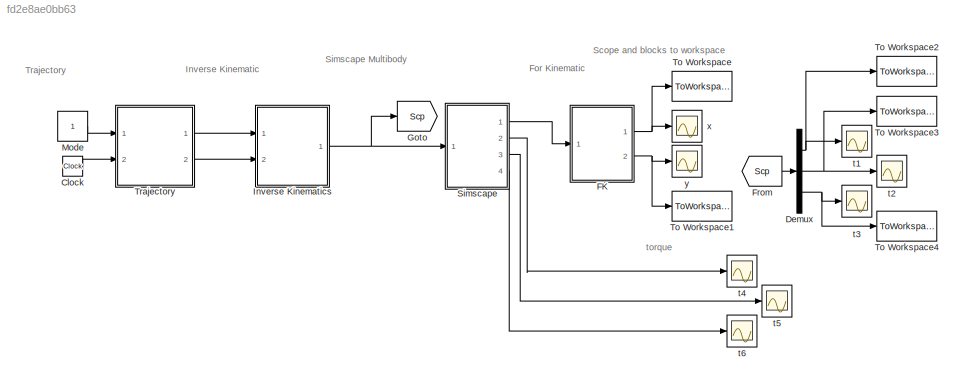
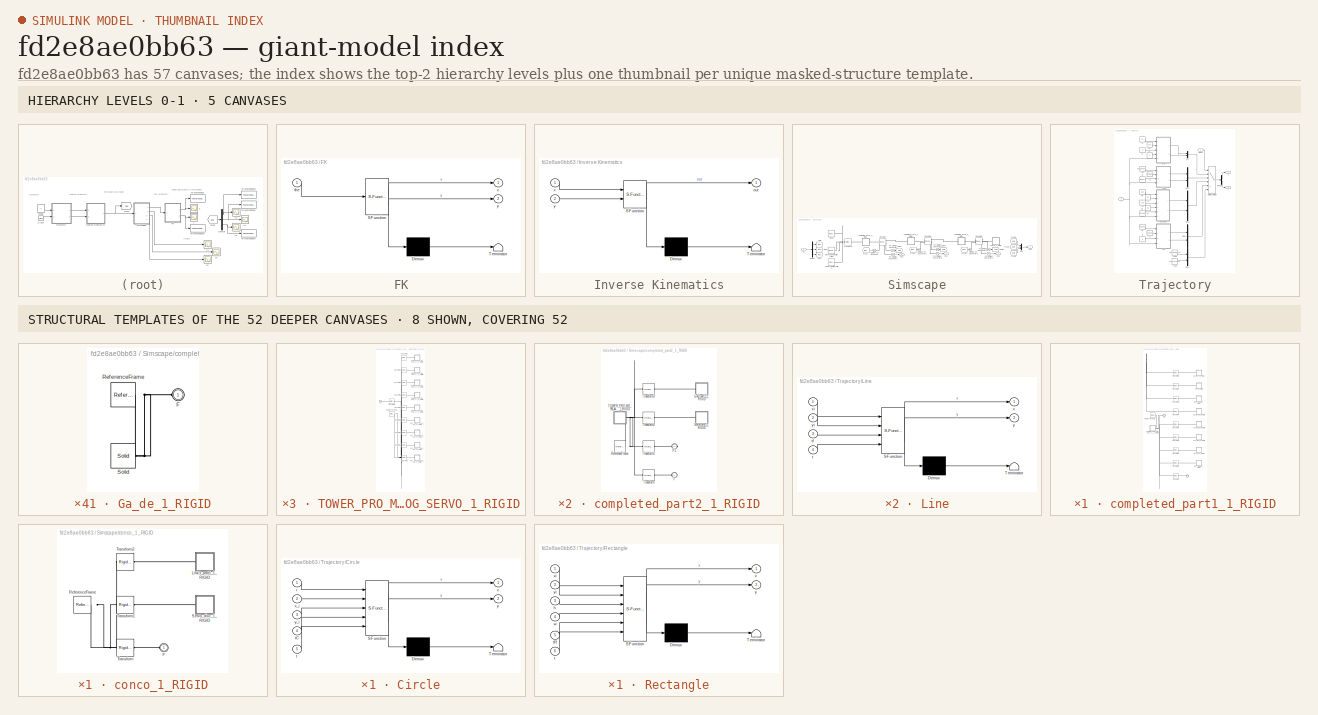
[diagram: thumbnail index - top-2 hierarchy levels (5 canvases) + 8 structural-template representatives of the remaining 52 canvases]
MODEL slx_fd2e8ae0bb63
KIND model
CONFIG AbsTol = auto
CONFIG EnableMultiTasking = off
CONFIG FixedStep = 0.01
CONFIG MaxStep = auto
CONFIG MinStep = auto
CONFIG RelTol = 1e-3
CONFIG SampleTimeConstraint = Unconstrained
CONFIG Solver = FixedStepAuto
CONFIG SolverName = FixedStepAuto
CONFIG StartTime = 0.0
CONFIG StopTime = 10
WORKSPACE source: external: MATLAB File  (data not in archive)
BLOCK [Clock] Clock
  DisplayTime = on
BLOCK [Demux] Demux
  DisplayOption = bar
  Outputs = 3
  Ports = [1, 3]
BLOCK [SubSystem] FK
  ErrorFcn = Stateflow.Translate.translate
  PermitHierarchicalResolution = ExplicitOnly
  Ports = [1, 2]
  RequestExecContextInheritance = off
  SFBlockType = MATLAB Function
  TreatAsAtomicUnit = on
BLOCK [Demux] FK/ Demux 
  Outputs = 1
  Ports = [1, 1]
BLOCK [S-Function] FK/ SFunction 
  EnableBusSupport = on
  FunctionName = sf_sfun
  PortCounts = [1 3]
  Ports = [1, 3]
  SFcnIsStateOwnerBlock = off
  SFunctionDeploymentMode = off
  Tag = Stateflow S-Function fullsize 6
BLOCK [Terminator] FK/ Terminator 
BLOCK [Inport] FK/the
  IconDisplay = Port number
BLOCK [Outport] FK/x
  IconDisplay = Port number
BLOCK [Outport] FK/y
  IconDisplay = Port number
  Port = 2
BLOCK [From] From
  GotoTag = Scp
BLOCK [Goto] Goto
  GotoTag = Scp
BLOCK [SubSystem] Inverse Kinematics
  ErrorFcn = Stateflow.Translate.translate
  PermitHierarchicalResolution = ExplicitOnly
  Ports = [2, 1]
  RequestExecContextInheritance = off
  SFBlockType = MATLAB Function
  TreatAsAtomicUnit = on
BLOCK [Demux] Inverse Kinematics/ Demux 
  Outputs = 1
  Ports = [1, 1]
BLOCK [S-Function] Inverse Kinematics/ SFunction 
  EnableBusSupport = on
  FunctionName = sf_sfun
  PortCounts = [2 2]
  Ports = [2, 2]
  SFcnIsStateOwnerBlock = off
  SFunctionDeploymentMode = off
  Tag = Stateflow S-Function fullsize 2
BLOCK [Terminator] Inverse Kinematics/ Terminator 
BLOCK [Outport] Inverse Kinematics/out
  IconDisplay = Port number
BLOCK [Inport] Inverse Kinematics/x
  IconDisplay = Port number
BLOCK [Inport] Inverse Kinematics/y
  IconDisplay = Port number
  Port = 2
BLOCK [Constant] Mode
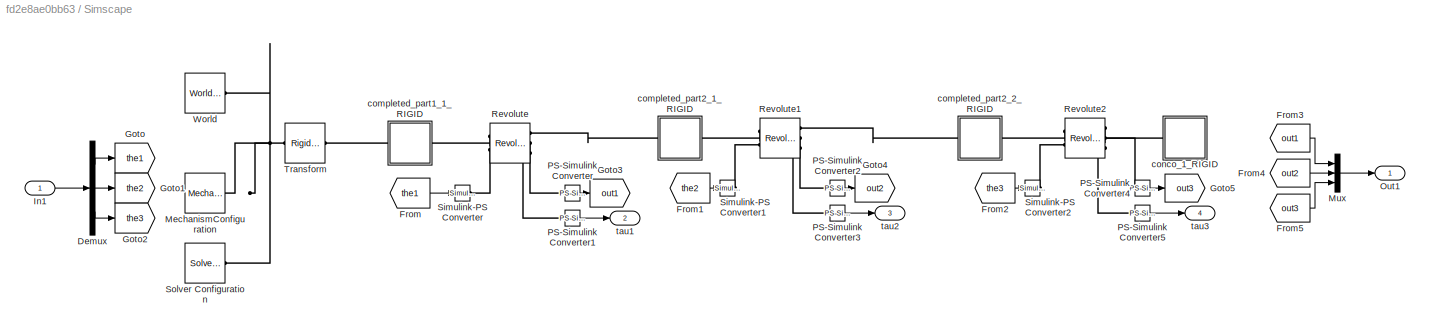
BLOCK [SubSystem] Simscape
  Ports = [1, 4]
  RequestExecContextInheritance = off
BLOCK [Demux] Simscape/Demux
  DisplayOption = bar
  Outputs = 3
  Ports = [1, 3]
BLOCK [From] Simscape/From
  GotoTag = the1
BLOCK [From] Simscape/From1
  GotoTag = the2
BLOCK [From] Simscape/From2
  GotoTag = the3
BLOCK [From] Simscape/From3
  GotoTag = out1
BLOCK [From] Simscape/From4
  GotoTag = out2
BLOCK [From] Simscape/From5
  GotoTag = out3
BLOCK [Goto] Simscape/Goto
  GotoTag = the1
BLOCK [Goto] Simscape/Goto1
  GotoTag = the2
BLOCK [Goto] Simscape/Goto2
  GotoTag = the3
BLOCK [Goto] Simscape/Goto3
  GotoTag = out1
BLOCK [Goto] Simscape/Goto4
  GotoTag = out2
BLOCK [Goto] Simscape/Goto5
  GotoTag = out3
BLOCK [Inport] Simscape/In1
  IconDisplay = Port number
BLOCK [Reference] Simscape/MechanismConfiguration  REF=sm_lib/Utilities/Mechanism
Configuration
  Ports = [0, 0, 0, 0, 0, 0, 1]
  SourceBlock = sm_lib/Utilities/Mechanism\nConfiguration
  SourceProductBaseCode = MS
  SourceProductName = Simscape Multibody
  SourceType = Mechanism\nConfiguration
BLOCK [Mux] Simscape/Mux
  DisplayOption = bar
  Inputs = 3
  Ports = [3, 1]
BLOCK [Outport] Simscape/Out1
  IconDisplay = Port number
BLOCK [Reference] Simscape/PS-Simulink Converter  REF=nesl_utility/PS-Simulink
Converter
  Ports = [0, 1, 0, 0, 0, 1]
  SourceBlock = nesl_utility/PS-Simulink\nConverter
  SourceProductBaseCode = SS
  SourceProductName = Simscape
  SourceType = PS-Simulink\nConverter
BLOCK [Reference] Simscape/PS-Simulink Converter1  REF=nesl_utility/PS-Simulink
Converter
  Ports = [0, 1, 0, 0, 0, 1]
  SourceBlock = nesl_utility/PS-Simulink\nConverter
  SourceProductBaseCode = SS
  SourceProductName = Simscape
  SourceType = PS-Simulink\nConverter
BLOCK [Reference] Simscape/PS-Simulink Converter2  REF=nesl_utility/PS-Simulink
Converter
  Ports = [0, 1, 0, 0, 0, 1]
  SourceBlock = nesl_utility/PS-Simulink\nConverter
  SourceProductBaseCode = SS
  SourceProductName = Simscape
  SourceType = PS-Simulink\nConverter
BLOCK [Reference] Simscape/PS-Simulink Converter3  REF=nesl_utility/PS-Simulink
Converter
  Ports = [0, 1, 0, 0, 0, 1]
  SourceBlock = nesl_utility/PS-Simulink\nConverter
  SourceProductBaseCode = SS
  SourceProductName = Simscape
  SourceType = PS-Simulink\nConverter
BLOCK [Reference] Simscape/PS-Simulink Converter4  REF=nesl_utility/PS-Simulink
Converter
  Ports = [0, 1, 0, 0, 0, 1]
  SourceBlock = nesl_utility/PS-Simulink\nConverter
  SourceProductBaseCode = SS
  SourceProductName = Simscape
  SourceType = PS-Simulink\nConverter
BLOCK [Reference] Simscape/PS-Simulink Converter5  REF=nesl_utility/PS-Simulink
Converter
  Ports = [0, 1, 0, 0, 0, 1]
  SourceBlock = nesl_utility/PS-Simulink\nConverter
  SourceProductBaseCode = SS
  SourceProductName = Simscape
  SourceType = PS-Simulink\nConverter
BLOCK [Reference] Simscape/Revolute  REF=sm_lib/Joints/Revolute Joint
  Ports = [0, 0, 0, 0, 0, 2, 3]
  SourceBlock = sm_lib/Joints/Revolute Joint
  SourceProductBaseCode = MS
  SourceProductName = Simscape Multibody
  SourceType = Revolute Joint
BLOCK [Reference] Simscape/Revolute1  REF=sm_lib/Joints/Revolute Joint
  Ports = [0, 0, 0, 0, 0, 2, 3]
  SourceBlock = sm_lib/Joints/Revolute Joint
  SourceProductBaseCode = MS
  SourceProductName = Simscape Multibody
  SourceType = Revolute Joint
BLOCK [Reference] Simscape/Revolute2  REF=sm_lib/Joints/Revolute Joint
  Ports = [0, 0, 0, 0, 0, 2, 3]
  SourceBlock = sm_lib/Joints/Revolute Joint
  SourceProductBaseCode = MS
  SourceProductName = Simscape Multibody
  SourceType = Revolute Joint
BLOCK [Reference] Simscape/Simulink-PS Converter  REF=nesl_utility/Simulink-PS
Converter
  Ports = [1, 0, 0, 0, 0, 0, 1]
  SourceBlock = nesl_utility/Simulink-PS\nConverter
  SourceProductBaseCode = SS
  SourceProductName = Simscape
  SourceType = Simulink-PS\nConverter
BLOCK [Reference] Simscape/Simulink-PS Converter1  REF=nesl_utility/Simulink-PS
Converter
  Ports = [1, 0, 0, 0, 0, 0, 1]
  SourceBlock = nesl_utility/Simulink-PS\nConverter
  SourceProductBaseCode = SS
  SourceProductName = Simscape
  SourceType = Simulink-PS\nConverter
BLOCK [Reference] Simscape/Simulink-PS Converter2  REF=nesl_utility/Simulink-PS
Converter
  Ports = [1, 0, 0, 0, 0, 0, 1]
  SourceBlock = nesl_utility/Simulink-PS\nConverter
  SourceProductBaseCode = SS
  SourceProductName = Simscape
  SourceType = Simulink-PS\nConverter
BLOCK [Reference] Simscape/Solver Configuration  REF=nesl_utility/Solver
Configuration
  Ports = [0, 0, 0, 0, 0, 0, 1]
  SourceBlock = nesl_utility/Solver\nConfiguration
  SourceProductBaseCode = SS
  SourceProductName = Simscape
  SourceType = Solver\nConfiguration
BLOCK [Reference] Simscape/Transform  REF=sm_lib/Frames and
Transforms/Rigid
Transform
  Ports = [0, 0, 0, 0, 0, 1, 1]
  SourceBlock = sm_lib/Frames and\nTransforms/Rigid\nTransform
  SourceProductBaseCode = MS
  SourceProductName = Simscape Multibody
  SourceType = Rigid\nTransform
BLOCK [Reference] Simscape/World  REF=sm_lib/Frames and
Transforms/World Frame
  Ports = [0, 0, 0, 0, 0, 0, 1]
  SourceBlock = sm_lib/Frames and\nTransforms/World Frame
  SourceProductBaseCode = MS
  SourceProductName = Simscape Multibody
  SourceType = World Frame
BLOCK [SubSystem] Simscape/completed_part1_1_RIGID
  Ports = [0, 0, 0, 0, 0, 1, 1]
  RequestExecContextInheritance = off
BLOCK [PMIOPort] Simscape/completed_part1_1_RIGID/F
  Port = 2
  Side = Right
BLOCK [PMIOPort] Simscape/completed_part1_1_RIGID/F1
  Side = Left
BLOCK [SubSystem] Simscape/completed_part1_1_RIGID/Ga_de_1_RIGID
  Ports = [0, 0, 0, 0, 0, 1]
  RequestExecContextInheritance = off
BLOCK [PMIOPort] Simscape/completed_part1_1_RIGID/Ga_de_1_RIGID/F
  Side = Left
BLOCK [Reference] Simscape/completed_part1_1_RIGID/Ga_de_1_RIGID/ReferenceFrame  REF=sm_lib/Frames and
Transforms/Reference
Frame
  Ports = [0, 0, 0, 0, 0, 0, 1]
  SourceBlock = sm_lib/Frames and\nTransforms/Reference\nFrame
  SourceProductBaseCode = MS
  SourceProductName = Simscape Multibody
  SourceType = Reference\nFrame
BLOCK [Reference] Simscape/completed_part1_1_RIGID/Ga_de_1_RIGID/Solid  REF=sm_lib/Body Elements/Solid
  Ports = [0, 0, 0, 0, 0, 0, 1]
  SourceBlock = sm_lib/Body Elements/Solid
  SourceProductBaseCode = MS
  SourceProductName = Simscape Multibody
  SourceType = Solid
BLOCK [SubSystem] Simscape/completed_part1_1_RIGID/Ga_de_2_RIGID
  Ports = [0, 0, 0, 0, 0, 1]
  RequestExecContextInheritance = off
BLOCK [PMIOPort] Simscape/completed_part1_1_RIGID/Ga_de_2_RIGID/F
  Side = Left
BLOCK [Reference] Simscape/completed_part1_1_RIGID/Ga_de_2_RIGID/ReferenceFrame  REF=sm_lib/Frames and
Transforms/Reference
Frame
  Ports = [0, 0, 0, 0, 0, 0, 1]
  SourceBlock = sm_lib/Frames and\nTransforms/Reference\nFrame
  SourceProductBaseCode = MS
  SourceProductName = Simscape Multibody
  SourceType = Reference\nFrame
BLOCK [Reference] Simscape/completed_part1_1_RIGID/Ga_de_2_RIGID/Solid  REF=sm_lib/Body Elements/Solid
  Ports = [0, 0, 0, 0, 0, 0, 1]
  SourceBlock = sm_lib/Body Elements/Solid
  SourceProductBaseCode = MS
  SourceProductName = Simscape Multibody
  SourceType = Solid
BLOCK [SubSystem] Simscape/completed_part1_1_RIGID/Ga_link1_1_RIGID
  Ports = [0, 0, 0, 0, 0, 1]
  RequestExecContextInheritance = off
BLOCK [PMIOPort] Simscape/completed_part1_1_RIGID/Ga_link1_1_RIGID/F
  Side = Left
BLOCK [Reference] Simscape/completed_part1_1_RIGID/Ga_link1_1_RIGID/ReferenceFrame  REF=sm_lib/Frames and
Transforms/Reference
Frame
  Ports = [0, 0, 0, 0, 0, 0, 1]
  SourceBlock = sm_lib/Frames and\nTransforms/Reference\nFrame
  SourceProductBaseCode = MS
  SourceProductName = Simscape Multibody
  SourceType = Reference\nFrame
BLOCK [Reference] Simscape/completed_part1_1_RIGID/Ga_link1_1_RIGID/Solid  REF=sm_lib/Body Elements/Solid
  Ports = [0, 0, 0, 0, 0, 0, 1]
  SourceBlock = sm_lib/Body Elements/Solid
  SourceProductBaseCode = MS
  SourceProductName = Simscape Multibody
  SourceType = Solid
BLOCK [SubSystem] Simscape/completed_part1_1_RIGID/M5_15mm_1_RIGID
  Ports = [0, 0, 0, 0, 0, 1]
  RequestExecContextInheritance = off
BLOCK [PMIOPort] Simscape/completed_part1_1_RIGID/M5_15mm_1_RIGID/F
  Side = Left
BLOCK [Reference] Simscape/completed_part1_1_RIGID/M5_15mm_1_RIGID/ReferenceFrame  REF=sm_lib/Frames and
Transforms/Reference
Frame
  Ports = [0, 0, 0, 0, 0, 0, 1]
  SourceBlock = sm_lib/Frames and\nTransforms/Reference\nFrame
  SourceProductBaseCode = MS
  SourceProductName = Simscape Multibody
  SourceType = Reference\nFrame
BLOCK [Reference] Simscape/completed_part1_1_RIGID/M5_15mm_1_RIGID/Solid  REF=sm_lib/Body Elements/Solid
  Ports = [0, 0, 0, 0, 0, 0, 1]
  SourceBlock = sm_lib/Body Elements/Solid
  SourceProductBaseCode = MS
  SourceProductName = Simscape Multibody
  SourceType = Solid
BLOCK [SubSystem] Simscape/completed_part1_1_RIGID/M5_15mm_2_RIGID
  Ports = [0, 0, 0, 0, 0, 1]
  RequestExecContextInheritance = off
BLOCK [PMIOPort] Simscape/completed_part1_1_RIGID/M5_15mm_2_RIGID/F
  Side = Left
BLOCK [Reference] Simscape/completed_part1_1_RIGID/M5_15mm_2_RIGID/ReferenceFrame  REF=sm_lib/Frames and
Transforms/Reference
Frame
  Ports = [0, 0, 0, 0, 0, 0, 1]
  SourceBlock = sm_lib/Frames and\nTransforms/Reference\nFrame
  SourceProductBaseCode = MS
  SourceProductName = Simscape Multibody
  SourceType = Reference\nFrame
BLOCK [Reference] Simscape/completed_part1_1_RIGID/M5_15mm_2_RIGID/Solid  REF=sm_lib/Body Elements/Solid
  Ports = [0, 0, 0, 0, 0, 0, 1]
  SourceBlock = sm_lib/Body Elements/Solid
  SourceProductBaseCode = MS
  SourceProductName = Simscape Multibody
  SourceType = Solid
BLOCK [Reference] Simscape/completed_part1_1_RIGID/ReferenceFrame  REF=sm_lib/Frames and
Transforms/Reference
Frame
  Ports = [0, 0, 0, 0, 0, 0, 1]
  SourceBlock = sm_lib/Frames and\nTransforms/Reference\nFrame
  SourceProductBaseCode = MS
  SourceProductName = Simscape Multibody
  SourceType = Reference\nFrame
BLOCK [SubSystem] Simscape/completed_part1_1_RIGID/TOWER_PRO_MG_995_ANALOG_SERVO_1_RIGID
  Ports = [0, 0, 0, 0, 0, 0, 1]
  RequestExecContextInheritance = off
BLOCK [PMIOPort] Simscape/completed_part1_1_RIGID/TOWER_PRO_MG_995_ANALOG_SERVO_1_RIGID/F
  Side = Right
BLOCK [Reference] Simscape/completed_part1_1_RIGID/TOWER_PRO_MG_995_ANALOG_SERVO_1_RIGID/ReferenceFrame  REF=sm_lib/Frames and
Transforms/Reference
Frame
  Ports = [0, 0, 0, 0, 0, 0, 1]
  SourceBlock = sm_lib/Frames and\nTransforms/Reference\nFrame
  SourceProductBaseCode = MS
  SourceProductName = Simscape Multibody
  SourceType = Reference\nFrame
BLOCK [SubSystem] Simscape/completed_part1_1_RIGID/TOWER_PRO_MG_995_ANALOG_SERVO_1_RIGID/TOWER_PRO_MG_995_ANALOG_SERVO_BODY_BOTTOM_1_RIGID
  Ports = [0, 0, 0, 0, 0, 1]
  RequestExecContextInheritance = off
BLOCK [PMIOPort] Simscape/completed_part1_1_RIGID/TOWER_PRO_MG_995_ANALOG_SERVO_1_RIGID/TOWER_PRO_MG_995_ANALOG_SERVO_BODY_BOTTOM_1_RIGID/F
  Side = Left
BLOCK [Reference] Simscape/completed_part1_1_RIGID/TOWER_PRO_MG_995_ANALOG_SERVO_1_RIGID/TOWER_PRO_MG_995_ANALOG_SERVO_BODY_BOTTOM_1_RIGID/ReferenceFrame  REF=sm_lib/Frames and
Transforms/Reference
Frame
  Ports = [0, 0, 0, 0, 0, 0, 1]
  SourceBlock = sm_lib/Frames and\nTransforms/Reference\nFrame
  SourceProductBaseCode = MS
  SourceProductName = Simscape Multibody
  SourceType = Reference\nFrame
BLOCK [Reference] Simscape/completed_part1_1_RIGID/TOWER_PRO_MG_995_ANALOG_SERVO_1_RIGID/TOWER_PRO_MG_995_ANALOG_SERVO_BODY_BOTTOM_1_RIGID/Solid  REF=sm_lib/Body Elements/Solid
  Ports = [0, 0, 0, 0, 0, 0, 1]
  SourceBlock = sm_lib/Body Elements/Solid
  SourceProductBaseCode = MS
  SourceProductName = Simscape Multibody
  SourceType = Solid
BLOCK [SubSystem] Simscape/completed_part1_1_RIGID/TOWER_PRO_MG_995_ANALOG_SERVO_1_RIGID/TOWER_PRO_MG_995_ANALOG_SERVO_BODY_MIDDLE_2_RIGID
  Ports = [0, 0, 0, 0, 0, 1]
  RequestExecContextInheritance = off
BLOCK [PMIOPort] Simscape/completed_part1_1_RIGID/TOWER_PRO_MG_995_ANALOG_SERVO_1_RIGID/TOWER_PRO_MG_995_ANALOG_SERVO_BODY_MIDDLE_2_RIGID/F
  Side = Left
BLOCK [Reference] Simscape/completed_part1_1_RIGID/TOWER_PRO_MG_995_ANALOG_SERVO_1_RIGID/TOWER_PRO_MG_995_ANALOG_SERVO_BODY_MIDDLE_2_RIGID/ReferenceFrame  REF=sm_lib/Frames and
Transforms/Reference
Frame
  Ports = [0, 0, 0, 0, 0, 0, 1]
  SourceBlock = sm_lib/Frames and\nTransforms/Reference\nFrame
  SourceProductBaseCode = MS
  SourceProductName = Simscape Multibody
  SourceType = Reference\nFrame
BLOCK [Reference] Simscape/completed_part1_1_RIGID/TOWER_PRO_MG_995_ANALOG_SERVO_1_RIGID/TOWER_PRO_MG_995_ANALOG_SERVO_BODY_MIDDLE_2_RIGID/Solid  REF=sm_lib/Body Elements/Solid
  Ports = [0, 0, 0, 0, 0, 0, 1]
  SourceBlock = sm_lib/Body Elements/Solid
  SourceProductBaseCode = MS
  SourceProductName = Simscape Multibody
  SourceType = Solid
BLOCK [SubSystem] Simscape/completed_part1_1_RIGID/TOWER_PRO_MG_995_ANALOG_SERVO_1_RIGID/TOWER_PRO_MG_995_ANALOG_SERVO_BODY_TOP_1_RIGID
  Ports = [0, 0, 0, 0, 0, 1]
  RequestExecContextInheritance = off
BLOCK [PMIOPort] Simscape/completed_part1_1_RIGID/TOWER_PRO_MG_995_ANALOG_SERVO_1_RIGID/TOWER_PRO_MG_995_ANALOG_SERVO_BODY_TOP_1_RIGID/F
  Side = Left
BLOCK [Reference] Simscape/completed_part1_1_RIGID/TOWER_PRO_MG_995_ANALOG_SERVO_1_RIGID/TOWER_PRO_MG_995_ANALOG_SERVO_BODY_TOP_1_RIGID/ReferenceFrame  REF=sm_lib/Frames and
Transforms/Reference
Frame
  Ports = [0, 0, 0, 0, 0, 0, 1]
  SourceBlock = sm_lib/Frames and\nTransforms/Reference\nFrame
  SourceProductBaseCode = MS
  SourceProductName = Simscape Multibody
  SourceType = Reference\nFrame
BLOCK [Reference] Simscape/completed_part1_1_RIGID/TOWER_PRO_MG_995_ANALOG_SERVO_1_RIGID/TOWER_PRO_MG_995_ANALOG_SERVO_BODY_TOP_1_RIGID/Solid  REF=sm_lib/Body Elements/Solid
  Ports = [0, 0, 0, 0, 0, 0, 1]
  SourceBlock = sm_lib/Body Elements/Solid
  SourceProductBaseCode = MS
  SourceProductName = Simscape Multibody
  SourceType = Solid
BLOCK [SubSystem] Simscape/completed_part1_1_RIGID/TOWER_PRO_MG_995_ANALOG_SERVO_1_RIGID/TOWER_PRO_MG_995_ANALOG_SERVO_CONNECTOR_1_RIGID
  Ports = [0, 0, 0, 0, 0, 1]
  RequestExecContextInheritance = off
BLOCK [PMIOPort] Simscape/completed_part1_1_RIGID/TOWER_PRO_MG_995_ANALOG_SERVO_1_RIGID/TOWER_PRO_MG_995_ANALOG_SERVO_CONNECTOR_1_RIGID/F
  Side = Left
BLOCK [Reference] Simscape/completed_part1_1_RIGID/TOWER_PRO_MG_995_ANALOG_SERVO_1_RIGID/TOWER_PRO_MG_995_ANALOG_SERVO_CONNECTOR_1_RIGID/ReferenceFrame  REF=sm_lib/Frames and
Transforms/Reference
Frame
  Ports = [0, 0, 0, 0, 0, 0, 1]
  SourceBlock = sm_lib/Frames and\nTransforms/Reference\nFrame
  SourceProductBaseCode = MS
  SourceProductName = Simscape Multibody
  SourceType = Reference\nFrame
BLOCK [Reference] Simscape/completed_part1_1_RIGID/TOWER_PRO_MG_995_ANALOG_SERVO_1_RIGID/TOWER_PRO_MG_995_ANALOG_SERVO_CONNECTOR_1_RIGID/Solid  REF=sm_lib/Body Elements/Solid
  Ports = [0, 0, 0, 0, 0, 0, 1]
  SourceBlock = sm_lib/Body Elements/Solid
  SourceProductBaseCode = MS
  SourceProductName = Simscape Multibody
  SourceType = Solid
BLOCK [SubSystem] Simscape/completed_part1_1_RIGID/TOWER_PRO_MG_995_ANALOG_SERVO_1_RIGID/TOWER_PRO_MG_995_ANALOG_SERVO_SHAFT_1_RIGID
  Ports = [0, 0, 0, 0, 0, 1]
  RequestExecContextInheritance = off
BLOCK [PMIOPort] Simscape/completed_part1_1_RIGID/TOWER_PRO_MG_995_ANALOG_SERVO_1_RIGID/TOWER_PRO_MG_995_ANALOG_SERVO_SHAFT_1_RIGID/F
  Side = Left
BLOCK [Reference] Simscape/completed_part1_1_RIGID/TOWER_PRO_MG_995_ANALOG_SERVO_1_RIGID/TOWER_PRO_MG_995_ANALOG_SERVO_SHAFT_1_RIGID/ReferenceFrame  REF=sm_lib/Frames and
Transforms/Reference
Frame
  Ports = [0, 0, 0, 0, 0, 0, 1]
  SourceBlock = sm_lib/Frames and\nTransforms/Reference\nFrame
  SourceProductBaseCode = MS
  SourceProductName = Simscape Multibody
  SourceType = Reference\nFrame
BLOCK [Reference] Simscape/completed_part1_1_RIGID/TOWER_PRO_MG_995_ANALOG_SERVO_1_RIGID/TOWER_PRO_MG_995_ANALOG_SERVO_SHAFT_1_RIGID/Solid  REF=sm_lib/Body Elements/Solid
  Ports = [0, 0, 0, 0, 0, 0, 1]
  SourceBlock = sm_lib/Body Elements/Solid
  SourceProductBaseCode = MS
  SourceProductName = Simscape Multibody
  SourceType = Solid
BLOCK [Reference] Simscape/completed_part1_1_RIGID/TOWER_PRO_MG_995_ANALOG_SERVO_1_RIGID/Transform  REF=sm_lib/Frames and
Transforms/Rigid
Transform
  Ports = [0, 0, 0, 0, 0, 1, 1]
  SourceBlock = sm_lib/Frames and\nTransforms/Rigid\nTransform
  SourceProductBaseCode = MS
  SourceProductName = Simscape Multibody
  SourceType = Rigid\nTransform
BLOCK [Reference] Simscape/completed_part1_1_RIGID/TOWER_PRO_MG_995_ANALOG_SERVO_1_RIGID/Transform1  REF=sm_lib/Frames and
Transforms/Rigid
Transform
  Ports = [0, 0, 0, 0, 0, 1, 1]
  SourceBlock = sm_lib/Frames and\nTransforms/Rigid\nTransform
  SourceProductBaseCode = MS
  SourceProductName = Simscape Multibody
  SourceType = Rigid\nTransform
BLOCK [Reference] Simscape/completed_part1_1_RIGID/TOWER_PRO_MG_995_ANALOG_SERVO_1_RIGID/Transform2  REF=sm_lib/Frames and
Transforms/Rigid
Transform
  Ports = [0, 0, 0, 0, 0, 1, 1]
  SourceBlock = sm_lib/Frames and\nTransforms/Rigid\nTransform
  SourceProductBaseCode = MS
  SourceProductName = Simscape Multibody
  SourceType = Rigid\nTransform
BLOCK [Reference] Simscape/completed_part1_1_RIGID/TOWER_PRO_MG_995_ANALOG_SERVO_1_RIGID/Transform3  REF=sm_lib/Frames and
Transforms/Rigid
Transform
  Ports = [0, 0, 0, 0, 0, 1, 1]
  SourceBlock = sm_lib/Frames and\nTransforms/Rigid\nTransform
  SourceProductBaseCode = MS
  SourceProductName = Simscape Multibody
  SourceType = Rigid\nTransform
BLOCK [Reference] Simscape/completed_part1_1_RIGID/TOWER_PRO_MG_995_ANALOG_SERVO_1_RIGID/Transform4  REF=sm_lib/Frames and
Transforms/Rigid
Transform
  Ports = [0, 0, 0, 0, 0, 1, 1]
  SourceBlock = sm_lib/Frames and\nTransforms/Rigid\nTransform
  SourceProductBaseCode = MS
  SourceProductName = Simscape Multibody
  SourceType = Rigid\nTransform
BLOCK [Reference] Simscape/completed_part1_1_RIGID/TOWER_PRO_MG_995_ANALOG_SERVO_1_RIGID/Transform5  REF=sm_lib/Frames and
Transforms/Rigid
Transform
  Ports = [0, 0, 0, 0, 0, 1, 1]
  SourceBlock = sm_lib/Frames and\nTransforms/Rigid\nTransform
  SourceProductBaseCode = MS
  SourceProductName = Simscape Multibody
  SourceType = Rigid\nTransform
BLOCK [Reference] Simscape/completed_part1_1_RIGID/TOWER_PRO_MG_995_ANALOG_SERVO_1_RIGID/Transform6  REF=sm_lib/Frames and
Transforms/Rigid
Transform
  Ports = [0, 0, 0, 0, 0, 1, 1]
  SourceBlock = sm_lib/Frames and\nTransforms/Rigid\nTransform
  SourceProductBaseCode = MS
  SourceProductName = Simscape Multibody
  SourceType = Rigid\nTransform
BLOCK [Reference] Simscape/completed_part1_1_RIGID/TOWER_PRO_MG_995_ANALOG_SERVO_1_RIGID/Transform7  REF=sm_lib/Frames and
Transforms/Rigid
Transform
  Ports = [0, 0, 0, 0, 0, 1, 1]
  SourceBlock = sm_lib/Frames and\nTransforms/Rigid\nTransform
  SourceProductBaseCode = MS
  SourceProductName = Simscape Multibody
  SourceType = Rigid\nTransform
BLOCK [Reference] Simscape/completed_part1_1_RIGID/TOWER_PRO_MG_995_ANALOG_SERVO_1_RIGID/Transform8  REF=sm_lib/Frames and
Transforms/Rigid
Transform
  Ports = [0, 0, 0, 0, 0, 1, 1]
  SourceBlock = sm_lib/Frames and\nTransforms/Rigid\nTransform
  SourceProductBaseCode = MS
  SourceProductName = Simscape Multibody
  SourceType = Rigid\nTransform
BLOCK [Reference] Simscape/completed_part1_1_RIGID/TOWER_PRO_MG_995_ANALOG_SERVO_1_RIGID/Transform9  REF=sm_lib/Frames and
Transforms/Rigid
Transform
  Ports = [0, 0, 0, 0, 0, 1, 1]
  SourceBlock = sm_lib/Frames and\nTransforms/Rigid\nTransform
  SourceProductBaseCode = MS
  SourceProductName = Simscape Multibody
  SourceType = Rigid\nTransform
BLOCK [SubSystem] Simscape/completed_part1_1_RIGID/TOWER_PRO_MG_995_ANALOG_SERVO_1_RIGID/pan_cross_head_am_17_RIGID
  Ports = [0, 0, 0, 0, 0, 1]
  RequestExecContextInheritance = off
BLOCK [PMIOPort] Simscape/completed_part1_1_RIGID/TOWER_PRO_MG_995_ANALOG_SERVO_1_RIGID/pan_cross_head_am_17_RIGID/F
  Side = Left
BLOCK [Reference] Simscape/completed_part1_1_RIGID/TOWER_PRO_MG_995_ANALOG_SERVO_1_RIGID/pan_cross_head_am_17_RIGID/ReferenceFrame  REF=sm_lib/Frames and
Transforms/Reference
Frame
  Ports = [0, 0, 0, 0, 0, 0, 1]
  SourceBlock = sm_lib/Frames and\nTransforms/Reference\nFrame
  SourceProductBaseCode = MS
  SourceProductName = Simscape Multibody
  SourceType = Reference\nFrame
BLOCK [Reference] Simscape/completed_part1_1_RIGID/TOWER_PRO_MG_995_ANALOG_SERVO_1_RIGID/pan_cross_head_am_17_RIGID/Solid  REF=sm_lib/Body Elements/Solid
  Ports = [0, 0, 0, 0, 0, 0, 1]
  SourceBlock = sm_lib/Body Elements/Solid
  SourceProductBaseCode = MS
  SourceProductName = Simscape Multibody
  SourceType = Solid
BLOCK [SubSystem] Simscape/completed_part1_1_RIGID/TOWER_PRO_MG_995_ANALOG_SERVO_1_RIGID/pan_cross_head_am_18_RIGID
  Ports = [0, 0, 0, 0, 0, 1]
  RequestExecContextInheritance = off
BLOCK [PMIOPort] Simscape/completed_part1_1_RIGID/TOWER_PRO_MG_995_ANALOG_SERVO_1_RIGID/pan_cross_head_am_18_RIGID/F
  Side = Left
BLOCK [Reference] Simscape/completed_part1_1_RIGID/TOWER_PRO_MG_995_ANALOG_SERVO_1_RIGID/pan_cross_head_am_18_RIGID/ReferenceFrame  REF=sm_lib/Frames and
Transforms/Reference
Frame
  Ports = [0, 0, 0, 0, 0, 0, 1]
  SourceBlock = sm_lib/Frames and\nTransforms/Reference\nFrame
  SourceProductBaseCode = MS
  SourceProductName = Simscape Multibody
  SourceType = Reference\nFrame
BLOCK [Reference] Simscape/completed_part1_1_RIGID/TOWER_PRO_MG_995_ANALOG_SERVO_1_RIGID/pan_cross_head_am_18_RIGID/Solid  REF=sm_lib/Body Elements/Solid
  Ports = [0, 0, 0, 0, 0, 0, 1]
  SourceBlock = sm_lib/Body Elements/Solid
  SourceProductBaseCode = MS
  SourceProductName = Simscape Multibody
  SourceType = Solid
BLOCK [SubSystem] Simscape/completed_part1_1_RIGID/TOWER_PRO_MG_995_ANALOG_SERVO_1_RIGID/pan_cross_head_am_19_RIGID
  Ports = [0, 0, 0, 0, 0, 1]
  RequestExecContextInheritance = off
BLOCK [PMIOPort] Simscape/completed_part1_1_RIGID/TOWER_PRO_MG_995_ANALOG_SERVO_1_RIGID/pan_cross_head_am_19_RIGID/F
  Side = Left
BLOCK [Reference] Simscape/completed_part1_1_RIGID/TOWER_PRO_MG_995_ANALOG_SERVO_1_RIGID/pan_cross_head_am_19_RIGID/ReferenceFrame  REF=sm_lib/Frames and
Transforms/Reference
Frame
  Ports = [0, 0, 0, 0, 0, 0, 1]
  SourceBlock = sm_lib/Frames and\nTransforms/Reference\nFrame
  SourceProductBaseCode = MS
  SourceProductName = Simscape Multibody
  SourceType = Reference\nFrame
BLOCK [Reference] Simscape/completed_part1_1_RIGID/TOWER_PRO_MG_995_ANALOG_SERVO_1_RIGID/pan_cross_head_am_19_RIGID/Solid  REF=sm_lib/Body Elements/Solid
  Ports = [0, 0, 0, 0, 0, 0, 1]
  SourceBlock = sm_lib/Body Elements/Solid
  SourceProductBaseCode = MS
  SourceProductName = Simscape Multibody
  SourceType = Solid
BLOCK [SubSystem] Simscape/completed_part1_1_RIGID/TOWER_PRO_MG_995_ANALOG_SERVO_1_RIGID/pan_cross_head_am_20_RIGID
  Ports = [0, 0, 0, 0, 0, 1]
  RequestExecContextInheritance = off
BLOCK [PMIOPort] Simscape/completed_part1_1_RIGID/TOWER_PRO_MG_995_ANALOG_SERVO_1_RIGID/pan_cross_head_am_20_RIGID/F
  Side = Left
BLOCK [Reference] Simscape/completed_part1_1_RIGID/TOWER_PRO_MG_995_ANALOG_SERVO_1_RIGID/pan_cross_head_am_20_RIGID/ReferenceFrame  REF=sm_lib/Frames and
Transforms/Reference
Frame
  Ports = [0, 0, 0, 0, 0, 0, 1]
  SourceBlock = sm_lib/Frames and\nTransforms/Reference\nFrame
  SourceProductBaseCode = MS
  SourceProductName = Simscape Multibody
  SourceType = Reference\nFrame
BLOCK [Reference] Simscape/completed_part1_1_RIGID/TOWER_PRO_MG_995_ANALOG_SERVO_1_RIGID/pan_cross_head_am_20_RIGID/Solid  REF=sm_lib/Body Elements/Solid
  Ports = [0, 0, 0, 0, 0, 0, 1]
  SourceBlock = sm_lib/Body Elements/Solid
  SourceProductBaseCode = MS
  SourceProductName = Simscape Multibody
  SourceType = Solid
BLOCK [SubSystem] Simscape/completed_part1_1_RIGID/Tan_M5_2_RIGID
  Ports = [0, 0, 0, 0, 0, 1]
  RequestExecContextInheritance = off
BLOCK [PMIOPort] Simscape/completed_part1_1_RIGID/Tan_M5_2_RIGID/F
  Side = Left
BLOCK [Reference] Simscape/completed_part1_1_RIGID/Tan_M5_2_RIGID/ReferenceFrame  REF=sm_lib/Frames and
Transforms/Reference
Frame
  Ports = [0, 0, 0, 0, 0, 0, 1]
  SourceBlock = sm_lib/Frames and\nTransforms/Reference\nFrame
  SourceProductBaseCode = MS
  SourceProductName = Simscape Multibody
  SourceType = Reference\nFrame
BLOCK [Reference] Simscape/completed_part1_1_RIGID/Tan_M5_2_RIGID/Solid  REF=sm_lib/Body Elements/Solid
  Ports = [0, 0, 0, 0, 0, 0, 1]
  SourceBlock = sm_lib/Body Elements/Solid
  SourceProductBaseCode = MS
  SourceProductName = Simscape Multibody
  SourceType = Solid
BLOCK [SubSystem] Simscape/completed_part1_1_RIGID/Tan_M5_3_RIGID
  Ports = [0, 0, 0, 0, 0, 1]
  RequestExecContextInheritance = off
BLOCK [PMIOPort] Simscape/completed_part1_1_RIGID/Tan_M5_3_RIGID/F
  Side = Left
BLOCK [Reference] Simscape/completed_part1_1_RIGID/Tan_M5_3_RIGID/ReferenceFrame  REF=sm_lib/Frames and
Transforms/Reference
Frame
  Ports = [0, 0, 0, 0, 0, 0, 1]
  SourceBlock = sm_lib/Frames and\nTransforms/Reference\nFrame
  SourceProductBaseCode = MS
  SourceProductName = Simscape Multibody
  SourceType = Reference\nFrame
BLOCK [Reference] Simscape/completed_part1_1_RIGID/Tan_M5_3_RIGID/Solid  REF=sm_lib/Body Elements/Solid
  Ports = [0, 0, 0, 0, 0, 0, 1]
  SourceBlock = sm_lib/Body Elements/Solid
  SourceProductBaseCode = MS
  SourceProductName = Simscape Multibody
  SourceType = Solid
BLOCK [Reference] Simscape/completed_part1_1_RIGID/Transform  REF=sm_lib/Frames and
Transforms/Rigid
Transform
  Ports = [0, 0, 0, 0, 0, 1, 1]
  SourceBlock = sm_lib/Frames and\nTransforms/Rigid\nTransform
  SourceProductBaseCode = MS
  SourceProductName = Simscape Multibody
  SourceType = Rigid\nTransform
BLOCK [Reference] Simscape/completed_part1_1_RIGID/Transform1  REF=sm_lib/Frames and
Transforms/Rigid
Transform
  Ports = [0, 0, 0, 0, 0, 1, 1]
  SourceBlock = sm_lib/Frames and\nTransforms/Rigid\nTransform
  SourceProductBaseCode = MS
  SourceProductName = Simscape Multibody
  SourceType = Rigid\nTransform
BLOCK [Reference] Simscape/completed_part1_1_RIGID/Transform2  REF=sm_lib/Frames and
Transforms/Rigid
Transform
  Ports = [0, 0, 0, 0, 0, 1, 1]
  SourceBlock = sm_lib/Frames and\nTransforms/Rigid\nTransform
  SourceProductBaseCode = MS
  SourceProductName = Simscape Multibody
  SourceType = Rigid\nTransform
BLOCK [Reference] Simscape/completed_part1_1_RIGID/Transform3  REF=sm_lib/Frames and
Transforms/Rigid
Transform
  Ports = [0, 0, 0, 0, 0, 1, 1]
  SourceBlock = sm_lib/Frames and\nTransforms/Rigid\nTransform
  SourceProductBaseCode = MS
  SourceProductName = Simscape Multibody
  SourceType = Rigid\nTransform
BLOCK [Reference] Simscape/completed_part1_1_RIGID/Transform4  REF=sm_lib/Frames and
Transforms/Rigid
Transform
  Ports = [0, 0, 0, 0, 0, 1, 1]
  SourceBlock = sm_lib/Frames and\nTransforms/Rigid\nTransform
  SourceProductBaseCode = MS
  SourceProductName = Simscape Multibody
  SourceType = Rigid\nTransform
BLOCK [Reference] Simscape/completed_part1_1_RIGID/Transform5  REF=sm_lib/Frames and
Transforms/Rigid
Transform
  Ports = [0, 0, 0, 0, 0, 1, 1]
  SourceBlock = sm_lib/Frames and\nTransforms/Rigid\nTransform
  SourceProductBaseCode = MS
  SourceProductName = Simscape Multibody
  SourceType = Rigid\nTransform
BLOCK [Reference] Simscape/completed_part1_1_RIGID/Transform6  REF=sm_lib/Frames and
Transforms/Rigid
Transform
  Ports = [0, 0, 0, 0, 0, 1, 1]
  SourceBlock = sm_lib/Frames and\nTransforms/Rigid\nTransform
  SourceProductBaseCode = MS
  SourceProductName = Simscape Multibody
  SourceType = Rigid\nTransform
BLOCK [Reference] Simscape/completed_part1_1_RIGID/Transform7  REF=sm_lib/Frames and
Transforms/Rigid
Transform
  Ports = [0, 0, 0, 0, 0, 1, 1]
  SourceBlock = sm_lib/Frames and\nTransforms/Rigid\nTransform
  SourceProductBaseCode = MS
  SourceProductName = Simscape Multibody
  SourceType = Rigid\nTransform
BLOCK [Reference] Simscape/completed_part1_1_RIGID/Transform8  REF=sm_lib/Frames and
Transforms/Rigid
Transform
  Ports = [0, 0, 0, 0, 0, 1, 1]
  SourceBlock = sm_lib/Frames and\nTransforms/Rigid\nTransform
  SourceProductBaseCode = MS
  SourceProductName = Simscape Multibody
  SourceType = Rigid\nTransform
BLOCK [SubSystem] Simscape/completed_part1_1_RIGID/de_1_RIGID
  Ports = [0, 0, 0, 0, 0, 1]
  RequestExecContextInheritance = off
BLOCK [PMIOPort] Simscape/completed_part1_1_RIGID/de_1_RIGID/F
  Side = Left
BLOCK [Reference] Simscape/completed_part1_1_RIGID/de_1_RIGID/ReferenceFrame  REF=sm_lib/Frames and
Transforms/Reference
Frame
  Ports = [0, 0, 0, 0, 0, 0, 1]
  SourceBlock = sm_lib/Frames and\nTransforms/Reference\nFrame
  SourceProductBaseCode = MS
  SourceProductName = Simscape Multibody
  SourceType = Reference\nFrame
BLOCK [Reference] Simscape/completed_part1_1_RIGID/de_1_RIGID/Solid  REF=sm_lib/Body Elements/Solid
  Ports = [0, 0, 0, 0, 0, 0, 1]
  SourceBlock = sm_lib/Body Elements/Solid
  SourceProductBaseCode = MS
  SourceProductName = Simscape Multibody
  SourceType = Solid
BLOCK [SubSystem] Simscape/completed_part2_1_RIGID
  Ports = [0, 0, 0, 0, 0, 1, 1]
  RequestExecContextInheritance = off
BLOCK [PMIOPort] Simscape/completed_part2_1_RIGID/F
  Side = Left
BLOCK [PMIOPort] Simscape/completed_part2_1_RIGID/F1
  Port = 2
  Side = Right
BLOCK [SubSystem] Simscape/completed_part2_1_RIGID/Link2_part1_1_RIGID
  Ports = [0, 0, 0, 0, 0, 1]
  RequestExecContextInheritance = off
BLOCK [PMIOPort] Simscape/completed_part2_1_RIGID/Link2_part1_1_RIGID/F
  Side = Left
BLOCK [Reference] Simscape/completed_part2_1_RIGID/Link2_part1_1_RIGID/ReferenceFrame  REF=sm_lib/Frames and
Transforms/Reference
Frame
  Ports = [0, 0, 0, 0, 0, 0, 1]
  SourceBlock = sm_lib/Frames and\nTransforms/Reference\nFrame
  SourceProductBaseCode = MS
  SourceProductName = Simscape Multibody
  SourceType = Reference\nFrame
BLOCK [Reference] Simscape/completed_part2_1_RIGID/Link2_part1_1_RIGID/Solid  REF=sm_lib/Body Elements/Solid
  Ports = [0, 0, 0, 0, 0, 0, 1]
  SourceBlock = sm_lib/Body Elements/Solid
  SourceProductBaseCode = MS
  SourceProductName = Simscape Multibody
  SourceType = Solid
BLOCK [Reference] Simscape/completed_part2_1_RIGID/ReferenceFrame  REF=sm_lib/Frames and
Transforms/Reference
Frame
  Ports = [0, 0, 0, 0, 0, 0, 1]
  SourceBlock = sm_lib/Frames and\nTransforms/Reference\nFrame
  SourceProductBaseCode = MS
  SourceProductName = Simscape Multibody
  SourceType = Reference\nFrame
BLOCK [SubSystem] Simscape/completed_part2_1_RIGID/Servo_disc_1_RIGID
  Ports = [0, 0, 0, 0, 0, 1]
  RequestExecContextInheritance = off
BLOCK [PMIOPort] Simscape/completed_part2_1_RIGID/Servo_disc_1_RIGID/F
  Side = Left
BLOCK [Reference] Simscape/completed_part2_1_RIGID/Servo_disc_1_RIGID/ReferenceFrame  REF=sm_lib/Frames and
Transforms/Reference
Frame
  Ports = [0, 0, 0, 0, 0, 0, 1]
  SourceBlock = sm_lib/Frames and\nTransforms/Reference\nFrame
  SourceProductBaseCode = MS
  SourceProductName = Simscape Multibody
  SourceType = Reference\nFrame
BLOCK [Reference] Simscape/completed_part2_1_RIGID/Servo_disc_1_RIGID/Solid  REF=sm_lib/Body Elements/Solid
  Ports = [0, 0, 0, 0, 0, 0, 1]
  SourceBlock = sm_lib/Body Elements/Solid
  SourceProductBaseCode = MS
  SourceProductName = Simscape Multibody
  SourceType = Solid
BLOCK [SubSystem] Simscape/completed_part2_1_RIGID/TOWER_PRO_MG_995_ANALOG_SERVO_1_RIGID
  Ports = [0, 0, 0, 0, 0, 0, 1]
  RequestExecContextInheritance = off
BLOCK [PMIOPort] Simscape/completed_part2_1_RIGID/TOWER_PRO_MG_995_ANALOG_SERVO_1_RIGID/F
  Side = Right
BLOCK [Reference] Simscape/completed_part2_1_RIGID/TOWER_PRO_MG_995_ANALOG_SERVO_1_RIGID/ReferenceFrame  REF=sm_lib/Frames and
Transforms/Reference
Frame
  Ports = [0, 0, 0, 0, 0, 0, 1]
  SourceBlock = sm_lib/Frames and\nTransforms/Reference\nFrame
  SourceProductBaseCode = MS
  SourceProductName = Simscape Multibody
  SourceType = Reference\nFrame
BLOCK [SubSystem] Simscape/completed_part2_1_RIGID/TOWER_PRO_MG_995_ANALOG_SERVO_1_RIGID/TOWER_PRO_MG_995_ANALOG_SERVO_BODY_BOTTOM_1_RIGID
  Ports = [0, 0, 0, 0, 0, 1]
  RequestExecContextInheritance = off
BLOCK [PMIOPort] Simscape/completed_part2_1_RIGID/TOWER_PRO_MG_995_ANALOG_SERVO_1_RIGID/TOWER_PRO_MG_995_ANALOG_SERVO_BODY_BOTTOM_1_RIGID/F
  Side = Left
BLOCK [Reference] Simscape/completed_part2_1_RIGID/TOWER_PRO_MG_995_ANALOG_SERVO_1_RIGID/TOWER_PRO_MG_995_ANALOG_SERVO_BODY_BOTTOM_1_RIGID/ReferenceFrame  REF=sm_lib/Frames and
Transforms/Reference
Frame
  Ports = [0, 0, 0, 0, 0, 0, 1]
  SourceBlock = sm_lib/Frames and\nTransforms/Reference\nFrame
  SourceProductBaseCode = MS
  SourceProductName = Simscape Multibody
  SourceType = Reference\nFrame
BLOCK [Reference] Simscape/completed_part2_1_RIGID/TOWER_PRO_MG_995_ANALOG_SERVO_1_RIGID/TOWER_PRO_MG_995_ANALOG_SERVO_BODY_BOTTOM_1_RIGID/Solid  REF=sm_lib/Body Elements/Solid
  Ports = [0, 0, 0, 0, 0, 0, 1]
  SourceBlock = sm_lib/Body Elements/Solid
  SourceProductBaseCode = MS
  SourceProductName = Simscape Multibody
  SourceType = Solid
BLOCK [SubSystem] Simscape/completed_part2_1_RIGID/TOWER_PRO_MG_995_ANALOG_SERVO_1_RIGID/TOWER_PRO_MG_995_ANALOG_SERVO_BODY_MIDDLE_2_RIGID
  Ports = [0, 0, 0, 0, 0, 1]
  RequestExecContextInheritance = off
BLOCK [PMIOPort] Simscape/completed_part2_1_RIGID/TOWER_PRO_MG_995_ANALOG_SERVO_1_RIGID/TOWER_PRO_MG_995_ANALOG_SERVO_BODY_MIDDLE_2_RIGID/F
  Side = Left
BLOCK [Reference] Simscape/completed_part2_1_RIGID/TOWER_PRO_MG_995_ANALOG_SERVO_1_RIGID/TOWER_PRO_MG_995_ANALOG_SERVO_BODY_MIDDLE_2_RIGID/ReferenceFrame  REF=sm_lib/Frames and
Transforms/Reference
Frame
  Ports = [0, 0, 0, 0, 0, 0, 1]
  SourceBlock = sm_lib/Frames and\nTransforms/Reference\nFrame
  SourceProductBaseCode = MS
  SourceProductName = Simscape Multibody
  SourceType = Reference\nFrame
BLOCK [Reference] Simscape/completed_part2_1_RIGID/TOWER_PRO_MG_995_ANALOG_SERVO_1_RIGID/TOWER_PRO_MG_995_ANALOG_SERVO_BODY_MIDDLE_2_RIGID/Solid  REF=sm_lib/Body Elements/Solid
  Ports = [0, 0, 0, 0, 0, 0, 1]
  SourceBlock = sm_lib/Body Elements/Solid
  SourceProductBaseCode = MS
  SourceProductName = Simscape Multibody
  SourceType = Solid
BLOCK [SubSystem] Simscape/completed_part2_1_RIGID/TOWER_PRO_MG_995_ANALOG_SERVO_1_RIGID/TOWER_PRO_MG_995_ANALOG_SERVO_BODY_TOP_1_RIGID
  Ports = [0, 0, 0, 0, 0, 1]
  RequestExecContextInheritance = off
BLOCK [PMIOPort] Simscape/completed_part2_1_RIGID/TOWER_PRO_MG_995_ANALOG_SERVO_1_RIGID/TOWER_PRO_MG_995_ANALOG_SERVO_BODY_TOP_1_RIGID/F
  Side = Left
BLOCK [Reference] Simscape/completed_part2_1_RIGID/TOWER_PRO_MG_995_ANALOG_SERVO_1_RIGID/TOWER_PRO_MG_995_ANALOG_SERVO_BODY_TOP_1_RIGID/ReferenceFrame  REF=sm_lib/Frames and
Transforms/Reference
Frame
  Ports = [0, 0, 0, 0, 0, 0, 1]
  SourceBlock = sm_lib/Frames and\nTransforms/Reference\nFrame
  SourceProductBaseCode = MS
  SourceProductName = Simscape Multibody
  SourceType = Reference\nFrame
BLOCK [Reference] Simscape/completed_part2_1_RIGID/TOWER_PRO_MG_995_ANALOG_SERVO_1_RIGID/TOWER_PRO_MG_995_ANALOG_SERVO_BODY_TOP_1_RIGID/Solid  REF=sm_lib/Body Elements/Solid
  Ports = [0, 0, 0, 0, 0, 0, 1]
  SourceBlock = sm_lib/Body Elements/Solid
  SourceProductBaseCode = MS
  SourceProductName = Simscape Multibody
  SourceType = Solid
BLOCK [SubSystem] Simscape/completed_part2_1_RIGID/TOWER_PRO_MG_995_ANALOG_SERVO_1_RIGID/TOWER_PRO_MG_995_ANALOG_SERVO_CONNECTOR_1_RIGID
  Ports = [0, 0, 0, 0, 0, 1]
  RequestExecContextInheritance = off
BLOCK [PMIOPort] Simscape/completed_part2_1_RIGID/TOWER_PRO_MG_995_ANALOG_SERVO_1_RIGID/TOWER_PRO_MG_995_ANALOG_SERVO_CONNECTOR_1_RIGID/F
  Side = Left
BLOCK [Reference] Simscape/completed_part2_1_RIGID/TOWER_PRO_MG_995_ANALOG_SERVO_1_RIGID/TOWER_PRO_MG_995_ANALOG_SERVO_CONNECTOR_1_RIGID/ReferenceFrame  REF=sm_lib/Frames and
Transforms/Reference
Frame
  Ports = [0, 0, 0, 0, 0, 0, 1]
  SourceBlock = sm_lib/Frames and\nTransforms/Reference\nFrame
  SourceProductBaseCode = MS
  SourceProductName = Simscape Multibody
  SourceType = Reference\nFrame
BLOCK [Reference] Simscape/completed_part2_1_RIGID/TOWER_PRO_MG_995_ANALOG_SERVO_1_RIGID/TOWER_PRO_MG_995_ANALOG_SERVO_CONNECTOR_1_RIGID/Solid  REF=sm_lib/Body Elements/Solid
  Ports = [0, 0, 0, 0, 0, 0, 1]
  SourceBlock = sm_lib/Body Elements/Solid
  SourceProductBaseCode = MS
  SourceProductName = Simscape Multibody
  SourceType = Solid
BLOCK [SubSystem] Simscape/completed_part2_1_RIGID/TOWER_PRO_MG_995_ANALOG_SERVO_1_RIGID/TOWER_PRO_MG_995_ANALOG_SERVO_SHAFT_1_RIGID
  Ports = [0, 0, 0, 0, 0, 1]
  RequestExecContextInheritance = off
BLOCK [PMIOPort] Simscape/completed_part2_1_RIGID/TOWER_PRO_MG_995_ANALOG_SERVO_1_RIGID/TOWER_PRO_MG_995_ANALOG_SERVO_SHAFT_1_RIGID/F
  Side = Left
BLOCK [Reference] Simscape/completed_part2_1_RIGID/TOWER_PRO_MG_995_ANALOG_SERVO_1_RIGID/TOWER_PRO_MG_995_ANALOG_SERVO_SHAFT_1_RIGID/ReferenceFrame  REF=sm_lib/Frames and
Transforms/Reference
Frame
  Ports = [0, 0, 0, 0, 0, 0, 1]
  SourceBlock = sm_lib/Frames and\nTransforms/Reference\nFrame
  SourceProductBaseCode = MS
  SourceProductName = Simscape Multibody
  SourceType = Reference\nFrame
BLOCK [Reference] Simscape/completed_part2_1_RIGID/TOWER_PRO_MG_995_ANALOG_SERVO_1_RIGID/TOWER_PRO_MG_995_ANALOG_SERVO_SHAFT_1_RIGID/Solid  REF=sm_lib/Body Elements/Solid
  Ports = [0, 0, 0, 0, 0, 0, 1]
  SourceBlock = sm_lib/Body Elements/Solid
  SourceProductBaseCode = MS
  SourceProductName = Simscape Multibody
  SourceType = Solid
BLOCK [Reference] Simscape/completed_part2_1_RIGID/TOWER_PRO_MG_995_ANALOG_SERVO_1_RIGID/Transform  REF=sm_lib/Frames and
Transforms/Rigid
Transform
  Ports = [0, 0, 0, 0, 0, 1, 1]
  SourceBlock = sm_lib/Frames and\nTransforms/Rigid\nTransform
  SourceProductBaseCode = MS
  SourceProductName = Simscape Multibody
  SourceType = Rigid\nTransform
BLOCK [Reference] Simscape/completed_part2_1_RIGID/TOWER_PRO_MG_995_ANALOG_SERVO_1_RIGID/Transform1  REF=sm_lib/Frames and
Transforms/Rigid
Transform
  Ports = [0, 0, 0, 0, 0, 1, 1]
  SourceBlock = sm_lib/Frames and\nTransforms/Rigid\nTransform
  SourceProductBaseCode = MS
  SourceProductName = Simscape Multibody
  SourceType = Rigid\nTransform
BLOCK [Reference] Simscape/completed_part2_1_RIGID/TOWER_PRO_MG_995_ANALOG_SERVO_1_RIGID/Transform2  REF=sm_lib/Frames and
Transforms/Rigid
Transform
  Ports = [0, 0, 0, 0, 0, 1, 1]
  SourceBlock = sm_lib/Frames and\nTransforms/Rigid\nTransform
  SourceProductBaseCode = MS
  SourceProductName = Simscape Multibody
  SourceType = Rigid\nTransform
BLOCK [Reference] Simscape/completed_part2_1_RIGID/TOWER_PRO_MG_995_ANALOG_SERVO_1_RIGID/Transform3  REF=sm_lib/Frames and
Transforms/Rigid
Transform
  Ports = [0, 0, 0, 0, 0, 1, 1]
  SourceBlock = sm_lib/Frames and\nTransforms/Rigid\nTransform
  SourceProductBaseCode = MS
  SourceProductName = Simscape Multibody
  SourceType = Rigid\nTransform
BLOCK [Reference] Simscape/completed_part2_1_RIGID/TOWER_PRO_MG_995_ANALOG_SERVO_1_RIGID/Transform4  REF=sm_lib/Frames and
Transforms/Rigid
Transform
  Ports = [0, 0, 0, 0, 0, 1, 1]
  SourceBlock = sm_lib/Frames and\nTransforms/Rigid\nTransform
  SourceProductBaseCode = MS
  SourceProductName = Simscape Multibody
  SourceType = Rigid\nTransform
BLOCK [Reference] Simscape/completed_part2_1_RIGID/TOWER_PRO_MG_995_ANALOG_SERVO_1_RIGID/Transform5  REF=sm_lib/Frames and
Transforms/Rigid
Transform
  Ports = [0, 0, 0, 0, 0, 1, 1]
  SourceBlock = sm_lib/Frames and\nTransforms/Rigid\nTransform
  SourceProductBaseCode = MS
  SourceProductName = Simscape Multibody
  SourceType = Rigid\nTransform
BLOCK [Reference] Simscape/completed_part2_1_RIGID/TOWER_PRO_MG_995_ANALOG_SERVO_1_RIGID/Transform6  REF=sm_lib/Frames and
Transforms/Rigid
Transform
  Ports = [0, 0, 0, 0, 0, 1, 1]
  SourceBlock = sm_lib/Frames and\nTransforms/Rigid\nTransform
  SourceProductBaseCode = MS
  SourceProductName = Simscape Multibody
  SourceType = Rigid\nTransform
BLOCK [Reference] Simscape/completed_part2_1_RIGID/TOWER_PRO_MG_995_ANALOG_SERVO_1_RIGID/Transform7  REF=sm_lib/Frames and
Transforms/Rigid
Transform
  Ports = [0, 0, 0, 0, 0, 1, 1]
  SourceBlock = sm_lib/Frames and\nTransforms/Rigid\nTransform
  SourceProductBaseCode = MS
  SourceProductName = Simscape Multibody
  SourceType = Rigid\nTransform
BLOCK [Reference] Simscape/completed_part2_1_RIGID/TOWER_PRO_MG_995_ANALOG_SERVO_1_RIGID/Transform8  REF=sm_lib/Frames and
Transforms/Rigid
Transform
  Ports = [0, 0, 0, 0, 0, 1, 1]
  SourceBlock = sm_lib/Frames and\nTransforms/Rigid\nTransform
  SourceProductBaseCode = MS
  SourceProductName = Simscape Multibody
  SourceType = Rigid\nTransform
BLOCK [Reference] Simscape/completed_part2_1_RIGID/TOWER_PRO_MG_995_ANALOG_SERVO_1_RIGID/Transform9  REF=sm_lib/Frames and
Transforms/Rigid
Transform
  Ports = [0, 0, 0, 0, 0, 1, 1]
  SourceBlock = sm_lib/Frames and\nTransforms/Rigid\nTransform
  SourceProductBaseCode = MS
  SourceProductName = Simscape Multibody
  SourceType = Rigid\nTransform
BLOCK [SubSystem] Simscape/completed_part2_1_RIGID/TOWER_PRO_MG_995_ANALOG_SERVO_1_RIGID/pan_cross_head_am_17_RIGID
  Ports = [0, 0, 0, 0, 0, 1]
  RequestExecContextInheritance = off
BLOCK [PMIOPort] Simscape/completed_part2_1_RIGID/TOWER_PRO_MG_995_ANALOG_SERVO_1_RIGID/pan_cross_head_am_17_RIGID/F
  Side = Left
BLOCK [Reference] Simscape/completed_part2_1_RIGID/TOWER_PRO_MG_995_ANALOG_SERVO_1_RIGID/pan_cross_head_am_17_RIGID/ReferenceFrame  REF=sm_lib/Frames and
Transforms/Reference
Frame
  Ports = [0, 0, 0, 0, 0, 0, 1]
  SourceBlock = sm_lib/Frames and\nTransforms/Reference\nFrame
  SourceProductBaseCode = MS
  SourceProductName = Simscape Multibody
  SourceType = Reference\nFrame
BLOCK [Reference] Simscape/completed_part2_1_RIGID/TOWER_PRO_MG_995_ANALOG_SERVO_1_RIGID/pan_cross_head_am_17_RIGID/Solid  REF=sm_lib/Body Elements/Solid
  Ports = [0, 0, 0, 0, 0, 0, 1]
  SourceBlock = sm_lib/Body Elements/Solid
  SourceProductBaseCode = MS
  SourceProductName = Simscape Multibody
  SourceType = Solid
BLOCK [SubSystem] Simscape/completed_part2_1_RIGID/TOWER_PRO_MG_995_ANALOG_SERVO_1_RIGID/pan_cross_head_am_18_RIGID
  Ports = [0, 0, 0, 0, 0, 1]
  RequestExecContextInheritance = off
BLOCK [PMIOPort] Simscape/completed_part2_1_RIGID/TOWER_PRO_MG_995_ANALOG_SERVO_1_RIGID/pan_cross_head_am_18_RIGID/F
  Side = Left
BLOCK [Reference] Simscape/completed_part2_1_RIGID/TOWER_PRO_MG_995_ANALOG_SERVO_1_RIGID/pan_cross_head_am_18_RIGID/ReferenceFrame  REF=sm_lib/Frames and
Transforms/Reference
Frame
  Ports = [0, 0, 0, 0, 0, 0, 1]
  SourceBlock = sm_lib/Frames and\nTransforms/Reference\nFrame
  SourceProductBaseCode = MS
  SourceProductName = Simscape Multibody
  SourceType = Reference\nFrame
BLOCK [Reference] Simscape/completed_part2_1_RIGID/TOWER_PRO_MG_995_ANALOG_SERVO_1_RIGID/pan_cross_head_am_18_RIGID/Solid  REF=sm_lib/Body Elements/Solid
  Ports = [0, 0, 0, 0, 0, 0, 1]
  SourceBlock = sm_lib/Body Elements/Solid
  SourceProductBaseCode = MS
  SourceProductName = Simscape Multibody
  SourceType = Solid
BLOCK [SubSystem] Simscape/completed_part2_1_RIGID/TOWER_PRO_MG_995_ANALOG_SERVO_1_RIGID/pan_cross_head_am_19_RIGID
  Ports = [0, 0, 0, 0, 0, 1]
  RequestExecContextInheritance = off
BLOCK [PMIOPort] Simscape/completed_part2_1_RIGID/TOWER_PRO_MG_995_ANALOG_SERVO_1_RIGID/pan_cross_head_am_19_RIGID/F
  Side = Left
BLOCK [Reference] Simscape/completed_part2_1_RIGID/TOWER_PRO_MG_995_ANALOG_SERVO_1_RIGID/pan_cross_head_am_19_RIGID/ReferenceFrame  REF=sm_lib/Frames and
Transforms/Reference
Frame
  Ports = [0, 0, 0, 0, 0, 0, 1]
  SourceBlock = sm_lib/Frames and\nTransforms/Reference\nFrame
  SourceProductBaseCode = MS
  SourceProductName = Simscape Multibody
  SourceType = Reference\nFrame
BLOCK [Reference] Simscape/completed_part2_1_RIGID/TOWER_PRO_MG_995_ANALOG_SERVO_1_RIGID/pan_cross_head_am_19_RIGID/Solid  REF=sm_lib/Body Elements/Solid
  Ports = [0, 0, 0, 0, 0, 0, 1]
  SourceBlock = sm_lib/Body Elements/Solid
  SourceProductBaseCode = MS
  SourceProductName = Simscape Multibody
  SourceType = Solid
BLOCK [SubSystem] Simscape/completed_part2_1_RIGID/TOWER_PRO_MG_995_ANALOG_SERVO_1_RIGID/pan_cross_head_am_20_RIGID
  Ports = [0, 0, 0, 0, 0, 1]
  RequestExecContextInheritance = off
BLOCK [PMIOPort] Simscape/completed_part2_1_RIGID/TOWER_PRO_MG_995_ANALOG_SERVO_1_RIGID/pan_cross_head_am_20_RIGID/F
  Side = Left
BLOCK [Reference] Simscape/completed_part2_1_RIGID/TOWER_PRO_MG_995_ANALOG_SERVO_1_RIGID/pan_cross_head_am_20_RIGID/ReferenceFrame  REF=sm_lib/Frames and
Transforms/Reference
Frame
  Ports = [0, 0, 0, 0, 0, 0, 1]
  SourceBlock = sm_lib/Frames and\nTransforms/Reference\nFrame
  SourceProductBaseCode = MS
  SourceProductName = Simscape Multibody
  SourceType = Reference\nFrame
BLOCK [Reference] Simscape/completed_part2_1_RIGID/TOWER_PRO_MG_995_ANALOG_SERVO_1_RIGID/pan_cross_head_am_20_RIGID/Solid  REF=sm_lib/Body Elements/Solid
  Ports = [0, 0, 0, 0, 0, 0, 1]
  SourceBlock = sm_lib/Body Elements/Solid
  SourceProductBaseCode = MS
  SourceProductName = Simscape Multibody
  SourceType = Solid
BLOCK [Reference] Simscape/completed_part2_1_RIGID/Transform  REF=sm_lib/Frames and
Transforms/Rigid
Transform
  Ports = [0, 0, 0, 0, 0, 1, 1]
  SourceBlock = sm_lib/Frames and\nTransforms/Rigid\nTransform
  SourceProductBaseCode = MS
  SourceProductName = Simscape Multibody
  SourceType = Rigid\nTransform
BLOCK [Reference] Simscape/completed_part2_1_RIGID/Transform1  REF=sm_lib/Frames and
Transforms/Rigid
Transform
  Ports = [0, 0, 0, 0, 0, 1, 1]
  SourceBlock = sm_lib/Frames and\nTransforms/Rigid\nTransform
  SourceProductBaseCode = MS
  SourceProductName = Simscape Multibody
  SourceType = Rigid\nTransform
BLOCK [Reference] Simscape/completed_part2_1_RIGID/Transform2  REF=sm_lib/Frames and
Transforms/Rigid
Transform
  Ports = [0, 0, 0, 0, 0, 1, 1]
  SourceBlock = sm_lib/Frames and\nTransforms/Rigid\nTransform
  SourceProductBaseCode = MS
  SourceProductName = Simscape Multibody
  SourceType = Rigid\nTransform
BLOCK [Reference] Simscape/completed_part2_1_RIGID/Transform3  REF=sm_lib/Frames and
Transforms/Rigid
Transform
  Ports = [0, 0, 0, 0, 0, 1, 1]
  SourceBlock = sm_lib/Frames and\nTransforms/Rigid\nTransform
  SourceProductBaseCode = MS
  SourceProductName = Simscape Multibody
  SourceType = Rigid\nTransform
BLOCK [SubSystem] Simscape/completed_part2_2_RIGID
  Ports = [0, 0, 0, 0, 0, 1, 1]
  RequestExecContextInheritance = off
BLOCK [PMIOPort] Simscape/completed_part2_2_RIGID/F
  Side = Left
BLOCK [PMIOPort] Simscape/completed_part2_2_RIGID/F1
  Port = 2
  Side = Right
BLOCK [SubSystem] Simscape/completed_part2_2_RIGID/Link2_part1_1_RIGID
  Ports = [0, 0, 0, 0, 0, 1]
  RequestExecContextInheritance = off
BLOCK [PMIOPort] Simscape/completed_part2_2_RIGID/Link2_part1_1_RIGID/F
  Side = Left
BLOCK [Reference] Simscape/completed_part2_2_RIGID/Link2_part1_1_RIGID/ReferenceFrame  REF=sm_lib/Frames and
Transforms/Reference
Frame
  Ports = [0, 0, 0, 0, 0, 0, 1]
  SourceBlock = sm_lib/Frames and\nTransforms/Reference\nFrame
  SourceProductBaseCode = MS
  SourceProductName = Simscape Multibody
  SourceType = Reference\nFrame
BLOCK [Reference] Simscape/completed_part2_2_RIGID/Link2_part1_1_RIGID/Solid  REF=sm_lib/Body Elements/Solid
  Ports = [0, 0, 0, 0, 0, 0, 1]
  SourceBlock = sm_lib/Body Elements/Solid
  SourceProductBaseCode = MS
  SourceProductName = Simscape Multibody
  SourceType = Solid
BLOCK [Reference] Simscape/completed_part2_2_RIGID/ReferenceFrame  REF=sm_lib/Frames and
Transforms/Reference
Frame
  Ports = [0, 0, 0, 0, 0, 0, 1]
  SourceBlock = sm_lib/Frames and\nTransforms/Reference\nFrame
  SourceProductBaseCode = MS
  SourceProductName = Simscape Multibody
  SourceType = Reference\nFrame
BLOCK [SubSystem] Simscape/completed_part2_2_RIGID/Servo_disc_1_RIGID
  Ports = [0, 0, 0, 0, 0, 1]
  RequestExecContextInheritance = off
BLOCK [PMIOPort] Simscape/completed_part2_2_RIGID/Servo_disc_1_RIGID/F
  Side = Left
BLOCK [Reference] Simscape/completed_part2_2_RIGID/Servo_disc_1_RIGID/ReferenceFrame  REF=sm_lib/Frames and
Transforms/Reference
Frame
  Ports = [0, 0, 0, 0, 0, 0, 1]
  SourceBlock = sm_lib/Frames and\nTransforms/Reference\nFrame
  SourceProductBaseCode = MS
  SourceProductName = Simscape Multibody
  SourceType = Reference\nFrame
BLOCK [Reference] Simscape/completed_part2_2_RIGID/Servo_disc_1_RIGID/Solid  REF=sm_lib/Body Elements/Solid
  Ports = [0, 0, 0, 0, 0, 0, 1]
  SourceBlock = sm_lib/Body Elements/Solid
  SourceProductBaseCode = MS
  SourceProductName = Simscape Multibody
  SourceType = Solid
BLOCK [SubSystem] Simscape/completed_part2_2_RIGID/TOWER_PRO_MG_995_ANALOG_SERVO_1_RIGID
  Ports = [0, 0, 0, 0, 0, 0, 1]
  RequestExecContextInheritance = off
BLOCK [PMIOPort] Simscape/completed_part2_2_RIGID/TOWER_PRO_MG_995_ANALOG_SERVO_1_RIGID/F
  Side = Right
BLOCK [Reference] Simscape/completed_part2_2_RIGID/TOWER_PRO_MG_995_ANALOG_SERVO_1_RIGID/ReferenceFrame  REF=sm_lib/Frames and
Transforms/Reference
Frame
  Ports = [0, 0, 0, 0, 0, 0, 1]
  SourceBlock = sm_lib/Frames and\nTransforms/Reference\nFrame
  SourceProductBaseCode = MS
  SourceProductName = Simscape Multibody
  SourceType = Reference\nFrame
BLOCK [SubSystem] Simscape/completed_part2_2_RIGID/TOWER_PRO_MG_995_ANALOG_SERVO_1_RIGID/TOWER_PRO_MG_995_ANALOG_SERVO_BODY_BOTTOM_1_RIGID
  Ports = [0, 0, 0, 0, 0, 1]
  RequestExecContextInheritance = off
BLOCK [PMIOPort] Simscape/completed_part2_2_RIGID/TOWER_PRO_MG_995_ANALOG_SERVO_1_RIGID/TOWER_PRO_MG_995_ANALOG_SERVO_BODY_BOTTOM_1_RIGID/F
  Side = Left
BLOCK [Reference] Simscape/completed_part2_2_RIGID/TOWER_PRO_MG_995_ANALOG_SERVO_1_RIGID/TOWER_PRO_MG_995_ANALOG_SERVO_BODY_BOTTOM_1_RIGID/ReferenceFrame  REF=sm_lib/Frames and
Transforms/Reference
Frame
  Ports = [0, 0, 0, 0, 0, 0, 1]
  SourceBlock = sm_lib/Frames and\nTransforms/Reference\nFrame
  SourceProductBaseCode = MS
  SourceProductName = Simscape Multibody
  SourceType = Reference\nFrame
BLOCK [Reference] Simscape/completed_part2_2_RIGID/TOWER_PRO_MG_995_ANALOG_SERVO_1_RIGID/TOWER_PRO_MG_995_ANALOG_SERVO_BODY_BOTTOM_1_RIGID/Solid  REF=sm_lib/Body Elements/Solid
  Ports = [0, 0, 0, 0, 0, 0, 1]
  SourceBlock = sm_lib/Body Elements/Solid
  SourceProductBaseCode = MS
  SourceProductName = Simscape Multibody
  SourceType = Solid
BLOCK [SubSystem] Simscape/completed_part2_2_RIGID/TOWER_PRO_MG_995_ANALOG_SERVO_1_RIGID/TOWER_PRO_MG_995_ANALOG_SERVO_BODY_MIDDLE_2_RIGID
  Ports = [0, 0, 0, 0, 0, 1]
  RequestExecContextInheritance = off
BLOCK [PMIOPort] Simscape/completed_part2_2_RIGID/TOWER_PRO_MG_995_ANALOG_SERVO_1_RIGID/TOWER_PRO_MG_995_ANALOG_SERVO_BODY_MIDDLE_2_RIGID/F
  Side = Left
BLOCK [Reference] Simscape/completed_part2_2_RIGID/TOWER_PRO_MG_995_ANALOG_SERVO_1_RIGID/TOWER_PRO_MG_995_ANALOG_SERVO_BODY_MIDDLE_2_RIGID/ReferenceFrame  REF=sm_lib/Frames and
Transforms/Reference
Frame
  Ports = [0, 0, 0, 0, 0, 0, 1]
  SourceBlock = sm_lib/Frames and\nTransforms/Reference\nFrame
  SourceProductBaseCode = MS
  SourceProductName = Simscape Multibody
  SourceType = Reference\nFrame
BLOCK [Reference] Simscape/completed_part2_2_RIGID/TOWER_PRO_MG_995_ANALOG_SERVO_1_RIGID/TOWER_PRO_MG_995_ANALOG_SERVO_BODY_MIDDLE_2_RIGID/Solid  REF=sm_lib/Body Elements/Solid
  Ports = [0, 0, 0, 0, 0, 0, 1]
  SourceBlock = sm_lib/Body Elements/Solid
  SourceProductBaseCode = MS
  SourceProductName = Simscape Multibody
  SourceType = Solid
BLOCK [SubSystem] Simscape/completed_part2_2_RIGID/TOWER_PRO_MG_995_ANALOG_SERVO_1_RIGID/TOWER_PRO_MG_995_ANALOG_SERVO_BODY_TOP_1_RIGID
  Ports = [0, 0, 0, 0, 0, 1]
  RequestExecContextInheritance = off
BLOCK [PMIOPort] Simscape/completed_part2_2_RIGID/TOWER_PRO_MG_995_ANALOG_SERVO_1_RIGID/TOWER_PRO_MG_995_ANALOG_SERVO_BODY_TOP_1_RIGID/F
  Side = Left
BLOCK [Reference] Simscape/completed_part2_2_RIGID/TOWER_PRO_MG_995_ANALOG_SERVO_1_RIGID/TOWER_PRO_MG_995_ANALOG_SERVO_BODY_TOP_1_RIGID/ReferenceFrame  REF=sm_lib/Frames and
Transforms/Reference
Frame
  Ports = [0, 0, 0, 0, 0, 0, 1]
  SourceBlock = sm_lib/Frames and\nTransforms/Reference\nFrame
  SourceProductBaseCode = MS
  SourceProductName = Simscape Multibody
  SourceType = Reference\nFrame
BLOCK [Reference] Simscape/completed_part2_2_RIGID/TOWER_PRO_MG_995_ANALOG_SERVO_1_RIGID/TOWER_PRO_MG_995_ANALOG_SERVO_BODY_TOP_1_RIGID/Solid  REF=sm_lib/Body Elements/Solid
  Ports = [0, 0, 0, 0, 0, 0, 1]
  SourceBlock = sm_lib/Body Elements/Solid
  SourceProductBaseCode = MS
  SourceProductName = Simscape Multibody
  SourceType = Solid
BLOCK [SubSystem] Simscape/completed_part2_2_RIGID/TOWER_PRO_MG_995_ANALOG_SERVO_1_RIGID/TOWER_PRO_MG_995_ANALOG_SERVO_CONNECTOR_1_RIGID
  Ports = [0, 0, 0, 0, 0, 1]
  RequestExecContextInheritance = off
BLOCK [PMIOPort] Simscape/completed_part2_2_RIGID/TOWER_PRO_MG_995_ANALOG_SERVO_1_RIGID/TOWER_PRO_MG_995_ANALOG_SERVO_CONNECTOR_1_RIGID/F
  Side = Left
BLOCK [Reference] Simscape/completed_part2_2_RIGID/TOWER_PRO_MG_995_ANALOG_SERVO_1_RIGID/TOWER_PRO_MG_995_ANALOG_SERVO_CONNECTOR_1_RIGID/ReferenceFrame  REF=sm_lib/Frames and
Transforms/Reference
Frame
  Ports = [0, 0, 0, 0, 0, 0, 1]
  SourceBlock = sm_lib/Frames and\nTransforms/Reference\nFrame
  SourceProductBaseCode = MS
  SourceProductName = Simscape Multibody
  SourceType = Reference\nFrame
BLOCK [Reference] Simscape/completed_part2_2_RIGID/TOWER_PRO_MG_995_ANALOG_SERVO_1_RIGID/TOWER_PRO_MG_995_ANALOG_SERVO_CONNECTOR_1_RIGID/Solid  REF=sm_lib/Body Elements/Solid
  Ports = [0, 0, 0, 0, 0, 0, 1]
  SourceBlock = sm_lib/Body Elements/Solid
  SourceProductBaseCode = MS
  SourceProductName = Simscape Multibody
  SourceType = Solid
BLOCK [SubSystem] Simscape/completed_part2_2_RIGID/TOWER_PRO_MG_995_ANALOG_SERVO_1_RIGID/TOWER_PRO_MG_995_ANALOG_SERVO_SHAFT_1_RIGID
  Ports = [0, 0, 0, 0, 0, 1]
  RequestExecContextInheritance = off
BLOCK [PMIOPort] Simscape/completed_part2_2_RIGID/TOWER_PRO_MG_995_ANALOG_SERVO_1_RIGID/TOWER_PRO_MG_995_ANALOG_SERVO_SHAFT_1_RIGID/F
  Side = Left
BLOCK [Reference] Simscape/completed_part2_2_RIGID/TOWER_PRO_MG_995_ANALOG_SERVO_1_RIGID/TOWER_PRO_MG_995_ANALOG_SERVO_SHAFT_1_RIGID/ReferenceFrame  REF=sm_lib/Frames and
Transforms/Reference
Frame
  Ports = [0, 0, 0, 0, 0, 0, 1]
  SourceBlock = sm_lib/Frames and\nTransforms/Reference\nFrame
  SourceProductBaseCode = MS
  SourceProductName = Simscape Multibody
  SourceType = Reference\nFrame
BLOCK [Reference] Simscape/completed_part2_2_RIGID/TOWER_PRO_MG_995_ANALOG_SERVO_1_RIGID/TOWER_PRO_MG_995_ANALOG_SERVO_SHAFT_1_RIGID/Solid  REF=sm_lib/Body Elements/Solid
  Ports = [0, 0, 0, 0, 0, 0, 1]
  SourceBlock = sm_lib/Body Elements/Solid
  SourceProductBaseCode = MS
  SourceProductName = Simscape Multibody
  SourceType = Solid
BLOCK [Reference] Simscape/completed_part2_2_RIGID/TOWER_PRO_MG_995_ANALOG_SERVO_1_RIGID/Transform  REF=sm_lib/Frames and
Transforms/Rigid
Transform
  Ports = [0, 0, 0, 0, 0, 1, 1]
  SourceBlock = sm_lib/Frames and\nTransforms/Rigid\nTransform
  SourceProductBaseCode = MS
  SourceProductName = Simscape Multibody
  SourceType = Rigid\nTransform
BLOCK [Reference] Simscape/completed_part2_2_RIGID/TOWER_PRO_MG_995_ANALOG_SERVO_1_RIGID/Transform1  REF=sm_lib/Frames and
Transforms/Rigid
Transform
  Ports = [0, 0, 0, 0, 0, 1, 1]
  SourceBlock = sm_lib/Frames and\nTransforms/Rigid\nTransform
  SourceProductBaseCode = MS
  SourceProductName = Simscape Multibody
  SourceType = Rigid\nTransform
BLOCK [Reference] Simscape/completed_part2_2_RIGID/TOWER_PRO_MG_995_ANALOG_SERVO_1_RIGID/Transform2  REF=sm_lib/Frames and
Transforms/Rigid
Transform
  Ports = [0, 0, 0, 0, 0, 1, 1]
  SourceBlock = sm_lib/Frames and\nTransforms/Rigid\nTransform
  SourceProductBaseCode = MS
  SourceProductName = Simscape Multibody
  SourceType = Rigid\nTransform
BLOCK [Reference] Simscape/completed_part2_2_RIGID/TOWER_PRO_MG_995_ANALOG_SERVO_1_RIGID/Transform3  REF=sm_lib/Frames and
Transforms/Rigid
Transform
  Ports = [0, 0, 0, 0, 0, 1, 1]
  SourceBlock = sm_lib/Frames and\nTransforms/Rigid\nTransform
  SourceProductBaseCode = MS
  SourceProductName = Simscape Multibody
  SourceType = Rigid\nTransform
BLOCK [Reference] Simscape/completed_part2_2_RIGID/TOWER_PRO_MG_995_ANALOG_SERVO_1_RIGID/Transform4  REF=sm_lib/Frames and
Transforms/Rigid
Transform
  Ports = [0, 0, 0, 0, 0, 1, 1]
  SourceBlock = sm_lib/Frames and\nTransforms/Rigid\nTransform
  SourceProductBaseCode = MS
  SourceProductName = Simscape Multibody
  SourceType = Rigid\nTransform
BLOCK [Reference] Simscape/completed_part2_2_RIGID/TOWER_PRO_MG_995_ANALOG_SERVO_1_RIGID/Transform5  REF=sm_lib/Frames and
Transforms/Rigid
Transform
  Ports = [0, 0, 0, 0, 0, 1, 1]
  SourceBlock = sm_lib/Frames and\nTransforms/Rigid\nTransform
  SourceProductBaseCode = MS
  SourceProductName = Simscape Multibody
  SourceType = Rigid\nTransform
BLOCK [Reference] Simscape/completed_part2_2_RIGID/TOWER_PRO_MG_995_ANALOG_SERVO_1_RIGID/Transform6  REF=sm_lib/Frames and
Transforms/Rigid
Transform
  Ports = [0, 0, 0, 0, 0, 1, 1]
  SourceBlock = sm_lib/Frames and\nTransforms/Rigid\nTransform
  SourceProductBaseCode = MS
  SourceProductName = Simscape Multibody
  SourceType = Rigid\nTransform
BLOCK [Reference] Simscape/completed_part2_2_RIGID/TOWER_PRO_MG_995_ANALOG_SERVO_1_RIGID/Transform7  REF=sm_lib/Frames and
Transforms/Rigid
Transform
  Ports = [0, 0, 0, 0, 0, 1, 1]
  SourceBlock = sm_lib/Frames and\nTransforms/Rigid\nTransform
  SourceProductBaseCode = MS
  SourceProductName = Simscape Multibody
  SourceType = Rigid\nTransform
BLOCK [Reference] Simscape/completed_part2_2_RIGID/TOWER_PRO_MG_995_ANALOG_SERVO_1_RIGID/Transform8  REF=sm_lib/Frames and
Transforms/Rigid
Transform
  Ports = [0, 0, 0, 0, 0, 1, 1]
  SourceBlock = sm_lib/Frames and\nTransforms/Rigid\nTransform
  SourceProductBaseCode = MS
  SourceProductName = Simscape Multibody
  SourceType = Rigid\nTransform
BLOCK [Reference] Simscape/completed_part2_2_RIGID/TOWER_PRO_MG_995_ANALOG_SERVO_1_RIGID/Transform9  REF=sm_lib/Frames and
Transforms/Rigid
Transform
  Ports = [0, 0, 0, 0, 0, 1, 1]
  SourceBlock = sm_lib/Frames and\nTransforms/Rigid\nTransform
  SourceProductBaseCode = MS
  SourceProductName = Simscape Multibody
  SourceType = Rigid\nTransform
BLOCK [SubSystem] Simscape/completed_part2_2_RIGID/TOWER_PRO_MG_995_ANALOG_SERVO_1_RIGID/pan_cross_head_am_17_RIGID
  Ports = [0, 0, 0, 0, 0, 1]
  RequestExecContextInheritance = off
BLOCK [PMIOPort] Simscape/completed_part2_2_RIGID/TOWER_PRO_MG_995_ANALOG_SERVO_1_RIGID/pan_cross_head_am_17_RIGID/F
  Side = Left
BLOCK [Reference] Simscape/completed_part2_2_RIGID/TOWER_PRO_MG_995_ANALOG_SERVO_1_RIGID/pan_cross_head_am_17_RIGID/ReferenceFrame  REF=sm_lib/Frames and
Transforms/Reference
Frame
  Ports = [0, 0, 0, 0, 0, 0, 1]
  SourceBlock = sm_lib/Frames and\nTransforms/Reference\nFrame
  SourceProductBaseCode = MS
  SourceProductName = Simscape Multibody
  SourceType = Reference\nFrame
BLOCK [Reference] Simscape/completed_part2_2_RIGID/TOWER_PRO_MG_995_ANALOG_SERVO_1_RIGID/pan_cross_head_am_17_RIGID/Solid  REF=sm_lib/Body Elements/Solid
  Ports = [0, 0, 0, 0, 0, 0, 1]
  SourceBlock = sm_lib/Body Elements/Solid
  SourceProductBaseCode = MS
  SourceProductName = Simscape Multibody
  SourceType = Solid
BLOCK [SubSystem] Simscape/completed_part2_2_RIGID/TOWER_PRO_MG_995_ANALOG_SERVO_1_RIGID/pan_cross_head_am_18_RIGID
  Ports = [0, 0, 0, 0, 0, 1]
  RequestExecContextInheritance = off
BLOCK [PMIOPort] Simscape/completed_part2_2_RIGID/TOWER_PRO_MG_995_ANALOG_SERVO_1_RIGID/pan_cross_head_am_18_RIGID/F
  Side = Left
BLOCK [Reference] Simscape/completed_part2_2_RIGID/TOWER_PRO_MG_995_ANALOG_SERVO_1_RIGID/pan_cross_head_am_18_RIGID/ReferenceFrame  REF=sm_lib/Frames and
Transforms/Reference
Frame
  Ports = [0, 0, 0, 0, 0, 0, 1]
  SourceBlock = sm_lib/Frames and\nTransforms/Reference\nFrame
  SourceProductBaseCode = MS
  SourceProductName = Simscape Multibody
  SourceType = Reference\nFrame
BLOCK [Reference] Simscape/completed_part2_2_RIGID/TOWER_PRO_MG_995_ANALOG_SERVO_1_RIGID/pan_cross_head_am_18_RIGID/Solid  REF=sm_lib/Body Elements/Solid
  Ports = [0, 0, 0, 0, 0, 0, 1]
  SourceBlock = sm_lib/Body Elements/Solid
  SourceProductBaseCode = MS
  SourceProductName = Simscape Multibody
  SourceType = Solid
BLOCK [SubSystem] Simscape/completed_part2_2_RIGID/TOWER_PRO_MG_995_ANALOG_SERVO_1_RIGID/pan_cross_head_am_19_RIGID
  Ports = [0, 0, 0, 0, 0, 1]
  RequestExecContextInheritance = off
BLOCK [PMIOPort] Simscape/completed_part2_2_RIGID/TOWER_PRO_MG_995_ANALOG_SERVO_1_RIGID/pan_cross_head_am_19_RIGID/F
  Side = Left
BLOCK [Reference] Simscape/completed_part2_2_RIGID/TOWER_PRO_MG_995_ANALOG_SERVO_1_RIGID/pan_cross_head_am_19_RIGID/ReferenceFrame  REF=sm_lib/Frames and
Transforms/Reference
Frame
  Ports = [0, 0, 0, 0, 0, 0, 1]
  SourceBlock = sm_lib/Frames and\nTransforms/Reference\nFrame
  SourceProductBaseCode = MS
  SourceProductName = Simscape Multibody
  SourceType = Reference\nFrame
BLOCK [Reference] Simscape/completed_part2_2_RIGID/TOWER_PRO_MG_995_ANALOG_SERVO_1_RIGID/pan_cross_head_am_19_RIGID/Solid  REF=sm_lib/Body Elements/Solid
  Ports = [0, 0, 0, 0, 0, 0, 1]
  SourceBlock = sm_lib/Body Elements/Solid
  SourceProductBaseCode = MS
  SourceProductName = Simscape Multibody
  SourceType = Solid
BLOCK [SubSystem] Simscape/completed_part2_2_RIGID/TOWER_PRO_MG_995_ANALOG_SERVO_1_RIGID/pan_cross_head_am_20_RIGID
  Ports = [0, 0, 0, 0, 0, 1]
  RequestExecContextInheritance = off
BLOCK [PMIOPort] Simscape/completed_part2_2_RIGID/TOWER_PRO_MG_995_ANALOG_SERVO_1_RIGID/pan_cross_head_am_20_RIGID/F
  Side = Left
BLOCK [Reference] Simscape/completed_part2_2_RIGID/TOWER_PRO_MG_995_ANALOG_SERVO_1_RIGID/pan_cross_head_am_20_RIGID/ReferenceFrame  REF=sm_lib/Frames and
Transforms/Reference
Frame
  Ports = [0, 0, 0, 0, 0, 0, 1]
  SourceBlock = sm_lib/Frames and\nTransforms/Reference\nFrame
  SourceProductBaseCode = MS
  SourceProductName = Simscape Multibody
  SourceType = Reference\nFrame
BLOCK [Reference] Simscape/completed_part2_2_RIGID/TOWER_PRO_MG_995_ANALOG_SERVO_1_RIGID/pan_cross_head_am_20_RIGID/Solid  REF=sm_lib/Body Elements/Solid
  Ports = [0, 0, 0, 0, 0, 0, 1]
  SourceBlock = sm_lib/Body Elements/Solid
  SourceProductBaseCode = MS
  SourceProductName = Simscape Multibody
  SourceType = Solid
BLOCK [Reference] Simscape/completed_part2_2_RIGID/Transform  REF=sm_lib/Frames and
Transforms/Rigid
Transform
  Ports = [0, 0, 0, 0, 0, 1, 1]
  SourceBlock = sm_lib/Frames and\nTransforms/Rigid\nTransform
  SourceProductBaseCode = MS
  SourceProductName = Simscape Multibody
  SourceType = Rigid\nTransform
BLOCK [Reference] Simscape/completed_part2_2_RIGID/Transform1  REF=sm_lib/Frames and
Transforms/Rigid
Transform
  Ports = [0, 0, 0, 0, 0, 1, 1]
  SourceBlock = sm_lib/Frames and\nTransforms/Rigid\nTransform
  SourceProductBaseCode = MS
  SourceProductName = Simscape Multibody
  SourceType = Rigid\nTransform
BLOCK [Reference] Simscape/completed_part2_2_RIGID/Transform2  REF=sm_lib/Frames and
Transforms/Rigid
Transform
  Ports = [0, 0, 0, 0, 0, 1, 1]
  SourceBlock = sm_lib/Frames and\nTransforms/Rigid\nTransform
  SourceProductBaseCode = MS
  SourceProductName = Simscape Multibody
  SourceType = Rigid\nTransform
BLOCK [Reference] Simscape/completed_part2_2_RIGID/Transform3  REF=sm_lib/Frames and
Transforms/Rigid
Transform
  Ports = [0, 0, 0, 0, 0, 1, 1]
  SourceBlock = sm_lib/Frames and\nTransforms/Rigid\nTransform
  SourceProductBaseCode = MS
  SourceProductName = Simscape Multibody
  SourceType = Rigid\nTransform
BLOCK [SubSystem] Simscape/conco_1_RIGID
  Ports = [0, 0, 0, 0, 0, 1]
  RequestExecContextInheritance = off
BLOCK [PMIOPort] Simscape/conco_1_RIGID/F
  Side = Left
BLOCK [SubSystem] Simscape/conco_1_RIGID/Link3_part1_1_RIGID
  Ports = [0, 0, 0, 0, 0, 1]
  RequestExecContextInheritance = off
BLOCK [PMIOPort] Simscape/conco_1_RIGID/Link3_part1_1_RIGID/F
  Side = Left
BLOCK [Reference] Simscape/conco_1_RIGID/Link3_part1_1_RIGID/ReferenceFrame  REF=sm_lib/Frames and
Transforms/Reference
Frame
  Ports = [0, 0, 0, 0, 0, 0, 1]
  SourceBlock = sm_lib/Frames and\nTransforms/Reference\nFrame
  SourceProductBaseCode = MS
  SourceProductName = Simscape Multibody
  SourceType = Reference\nFrame
BLOCK [Reference] Simscape/conco_1_RIGID/Link3_part1_1_RIGID/Solid  REF=sm_lib/Body Elements/Solid
  Ports = [0, 0, 0, 0, 0, 0, 1]
  SourceBlock = sm_lib/Body Elements/Solid
  SourceProductBaseCode = MS
  SourceProductName = Simscape Multibody
  SourceType = Solid
BLOCK [Reference] Simscape/conco_1_RIGID/ReferenceFrame  REF=sm_lib/Frames and
Transforms/Reference
Frame
  Ports = [0, 0, 0, 0, 0, 0, 1]
  SourceBlock = sm_lib/Frames and\nTransforms/Reference\nFrame
  SourceProductBaseCode = MS
  SourceProductName = Simscape Multibody
  SourceType = Reference\nFrame
BLOCK [SubSystem] Simscape/conco_1_RIGID/Servo_disc_1_RIGID
  Ports = [0, 0, 0, 0, 0, 1]
  RequestExecContextInheritance = off
BLOCK [PMIOPort] Simscape/conco_1_RIGID/Servo_disc_1_RIGID/F
  Side = Left
BLOCK [Reference] Simscape/conco_1_RIGID/Servo_disc_1_RIGID/ReferenceFrame  REF=sm_lib/Frames and
Transforms/Reference
Frame
  Ports = [0, 0, 0, 0, 0, 0, 1]
  SourceBlock = sm_lib/Frames and\nTransforms/Reference\nFrame
  SourceProductBaseCode = MS
  SourceProductName = Simscape Multibody
  SourceType = Reference\nFrame
BLOCK [Reference] Simscape/conco_1_RIGID/Servo_disc_1_RIGID/Solid  REF=sm_lib/Body Elements/Solid
  Ports = [0, 0, 0, 0, 0, 0, 1]
  SourceBlock = sm_lib/Body Elements/Solid
  SourceProductBaseCode = MS
  SourceProductName = Simscape Multibody
  SourceType = Solid
BLOCK [Reference] Simscape/conco_1_RIGID/Transform  REF=sm_lib/Frames and
Transforms/Rigid
Transform
  Ports = [0, 0, 0, 0, 0, 1, 1]
  SourceBlock = sm_lib/Frames and\nTransforms/Rigid\nTransform
  SourceProductBaseCode = MS
  SourceProductName = Simscape Multibody
  SourceType = Rigid\nTransform
BLOCK [Reference] Simscape/conco_1_RIGID/Transform1  REF=sm_lib/Frames and
Transforms/Rigid
Transform
  Ports = [0, 0, 0, 0, 0, 1, 1]
  SourceBlock = sm_lib/Frames and\nTransforms/Rigid\nTransform
  SourceProductBaseCode = MS
  SourceProductName = Simscape Multibody
  SourceType = Rigid\nTransform
BLOCK [Reference] Simscape/conco_1_RIGID/Transform2  REF=sm_lib/Frames and
Transforms/Rigid
Transform
  Ports = [0, 0, 0, 0, 0, 1, 1]
  SourceBlock = sm_lib/Frames and\nTransforms/Rigid\nTransform
  SourceProductBaseCode = MS
  SourceProductName = Simscape Multibody
  SourceType = Rigid\nTransform
BLOCK [Outport] Simscape/tau1
  IconDisplay = Port number
  Port = 2
BLOCK [Outport] Simscape/tau2
  IconDisplay = Port number
  Port = 3
BLOCK [Outport] Simscape/tau3
  IconDisplay = Port number
  Port = 4
BLOCK [ToWorkspace] To Workspace
  FixptAsFi = on
  MaxDataPoints = inf
  Ports = [1]
  SampleTime = -1
  Save2DSignal = 3-D array (concatenate along third dimension)
  SaveFormat = Timeseries
  VariableName = x_out
BLOCK [ToWorkspace] To Workspace1
  FixptAsFi = on
  MaxDataPoints = inf
  Ports = [1]
  SampleTime = -1
  Save2DSignal = 3-D array (concatenate along third dimension)
  SaveFormat = Timeseries
  VariableName = y_out
BLOCK [ToWorkspace] To Workspace2
  FixptAsFi = on
  MaxDataPoints = inf
  Ports = [1]
  SampleTime = -1
  Save2DSignal = 3-D array (concatenate along third dimension)
  SaveFormat = Timeseries
  VariableName = t1_out
BLOCK [ToWorkspace] To Workspace3
  FixptAsFi = on
  MaxDataPoints = inf
  Ports = [1]
  SampleTime = -1
  Save2DSignal = 3-D array (concatenate along third dimension)
  SaveFormat = Timeseries
  VariableName = t2_out
BLOCK [ToWorkspace] To Workspace4
  FixptAsFi = on
  MaxDataPoints = inf
  Ports = [1]
  SampleTime = -1
  Save2DSignal = 3-D array (concatenate along third dimension)
  SaveFormat = Timeseries
  VariableName = t3_out
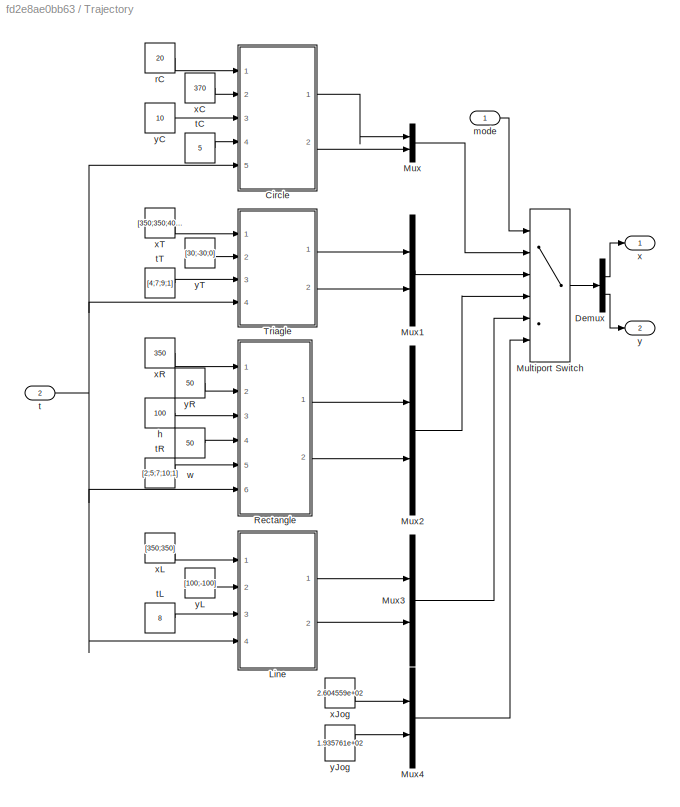
BLOCK [SubSystem] Trajectory
  Ports = [2, 2]
  RequestExecContextInheritance = off
BLOCK [SubSystem] Trajectory/Circle
  ErrorFcn = Stateflow.Translate.translate
  PermitHierarchicalResolution = ExplicitOnly
  Ports = [5, 2]
  RequestExecContextInheritance = off
  SFBlockType = MATLAB Function
  TreatAsAtomicUnit = on
BLOCK [Demux] Trajectory/Circle/ Demux 
  Outputs = 1
  Ports = [1, 1]
BLOCK [S-Function] Trajectory/Circle/ SFunction 
  EnableBusSupport = on
  FunctionName = sf_sfun
  PortCounts = [5 3]
  Ports = [5, 3]
  SFcnIsStateOwnerBlock = off
  SFunctionDeploymentMode = off
  Tag = Stateflow S-Function fullsize 1
BLOCK [Terminator] Trajectory/Circle/ Terminator 
BLOCK [Inport] Trajectory/Circle/r
  IconDisplay = Port number
BLOCK [Inport] Trajectory/Circle/t
  IconDisplay = Port number
  Port = 5
BLOCK [Inport] Trajectory/Circle/tC
  IconDisplay = Port number
  Port = 4
BLOCK [Outport] Trajectory/Circle/x
  IconDisplay = Port number
BLOCK [Inport] Trajectory/Circle/x_i
  IconDisplay = Port number
  Port = 2
BLOCK [Outport] Trajectory/Circle/y
  IconDisplay = Port number
  Port = 2
BLOCK [Inport] Trajectory/Circle/y_i
  IconDisplay = Port number
  Port = 3
BLOCK [Demux] Trajectory/Demux
  DisplayOption = bar
  Outputs = 2
  Ports = [1, 2]
BLOCK [SubSystem] Trajectory/Line
  ErrorFcn = Stateflow.Translate.translate
  PermitHierarchicalResolution = ExplicitOnly
  Ports = [4, 2]
  RequestExecContextInheritance = off
  SFBlockType = MATLAB Function
  TreatAsAtomicUnit = on
BLOCK [Demux] Trajectory/Line/ Demux 
  Outputs = 1
  Ports = [1, 1]
BLOCK [S-Function] Trajectory/Line/ SFunction 
  EnableBusSupport = on
  FunctionName = sf_sfun
  PortCounts = [4 3]
  Ports = [4, 3]
  SFcnIsStateOwnerBlock = off
  SFunctionDeploymentMode = off
  Tag = Stateflow S-Function fullsize 3
BLOCK [Terminator] Trajectory/Line/ Terminator 
BLOCK [Inport] Trajectory/Line/t
  IconDisplay = Port number
  Port = 4
BLOCK [Inport] Trajectory/Line/tf
  IconDisplay = Port number
  Port = 3
BLOCK [Outport] Trajectory/Line/x
  IconDisplay = Port number
BLOCK [Inport] Trajectory/Line/xi
  IconDisplay = Port number
BLOCK [Outport] Trajectory/Line/y
  IconDisplay = Port number
  Port = 2
BLOCK [Inport] Trajectory/Line/yi
  IconDisplay = Port number
  Port = 2
BLOCK [MultiPortSwitch] Trajectory/Multiport Switch
  DataPortOrder = Zero-based contiguous
  InputSameDT = off
  Inputs = 5
  Ports = [6, 1]
  SaturateOnIntegerOverflow = off
  zeroidx = on
BLOCK [Mux] Trajectory/Mux
  DisplayOption = bar
  Inputs = 2
  Ports = [2, 1]
BLOCK [Mux] Trajectory/Mux1
  DisplayOption = bar
  Inputs = 2
  Ports = [2, 1]
BLOCK [Mux] Trajectory/Mux2
  DisplayOption = bar
  Inputs = 2
  Ports = [2, 1]
BLOCK [Mux] Trajectory/Mux3
  DisplayOption = bar
  Inputs = 2
  Ports = [2, 1]
BLOCK [Mux] Trajectory/Mux4
  DisplayOption = bar
  Inputs = 2
  Ports = [2, 1]
BLOCK [SubSystem] Trajectory/Rectangle
  ErrorFcn = Stateflow.Translate.translate
  PermitHierarchicalResolution = ExplicitOnly
  Ports = [6, 2]
  RequestExecContextInheritance = off
  SFBlockType = MATLAB Function
  TreatAsAtomicUnit = on
BLOCK [Demux] Trajectory/Rectangle/ Demux 
  Outputs = 1
  Ports = [1, 1]
BLOCK [S-Function] Trajectory/Rectangle/ SFunction 
  EnableBusSupport = on
  FunctionName = sf_sfun
  PortCounts = [6 3]
  Ports = [6, 3]
  SFcnIsStateOwnerBlock = off
  SFunctionDeploymentMode = off
  Tag = Stateflow S-Function fullsize 5
BLOCK [Terminator] Trajectory/Rectangle/ Terminator 
BLOCK [Inport] Trajectory/Rectangle/h
  IconDisplay = Port number
  Port = 3
BLOCK [Inport] Trajectory/Rectangle/t
  IconDisplay = Port number
  Port = 6
BLOCK [Inport] Trajectory/Rectangle/tR
  IconDisplay = Port number
  Port = 5
BLOCK [Inport] Trajectory/Rectangle/w
  IconDisplay = Port number
  Port = 4
BLOCK [Outport] Trajectory/Rectangle/x
  IconDisplay = Port number
BLOCK [Inport] Trajectory/Rectangle/xi
  IconDisplay = Port number
BLOCK [Outport] Trajectory/Rectangle/y
  IconDisplay = Port number
  Port = 2
BLOCK [Inport] Trajectory/Rectangle/yi
  IconDisplay = Port number
  Port = 2
BLOCK [SubSystem] Trajectory/Triagle
  ErrorFcn = Stateflow.Translate.translate
  PermitHierarchicalResolution = ExplicitOnly
  Ports = [4, 2]
  RequestExecContextInheritance = off
  SFBlockType = MATLAB Function
  TreatAsAtomicUnit = on
BLOCK [Demux] Trajectory/Triagle/ Demux 
  Outputs = 1
  Ports = [1, 1]
BLOCK [S-Function] Trajectory/Triagle/ SFunction 
  EnableBusSupport = on
  FunctionName = sf_sfun
  PortCounts = [4 3]
  Ports = [4, 3]
  SFcnIsStateOwnerBlock = off
  SFunctionDeploymentMode = off
  Tag = Stateflow S-Function fullsize 7
BLOCK [Terminator] Trajectory/Triagle/ Terminator 
BLOCK [Inport] Trajectory/Triagle/t
  IconDisplay = Port number
  Port = 4
BLOCK [Inport] Trajectory/Triagle/tT
  IconDisplay = Port number
  Port = 3
BLOCK [Outport] Trajectory/Triagle/x
  IconDisplay = Port number
BLOCK [Inport] Trajectory/Triagle/xi
  IconDisplay = Port number
BLOCK [Outport] Trajectory/Triagle/y
  IconDisplay = Port number
  Port = 2
BLOCK [Inport] Trajectory/Triagle/yi
  IconDisplay = Port number
  Port = 2
BLOCK [Constant] Trajectory/h
  Value = 100
BLOCK [Inport] Trajectory/mode
  IconDisplay = Port number
BLOCK [Constant] Trajectory/rC
  Value = 20
BLOCK [Inport] Trajectory/t
  IconDisplay = Port number
  Port = 2
BLOCK [Constant] Trajectory/tC
  Value = 5
BLOCK [Constant] Trajectory/tL
  Value = 8
BLOCK [Constant] Trajectory/tR
  Value = [2;5;7;10;1]
BLOCK [Constant] Trajectory/tT
  Value = [4;7;9;1]
BLOCK [Constant] Trajectory/w
  Value = 50
BLOCK [Outport] Trajectory/x
  IconDisplay = Port number
BLOCK [Constant] Trajectory/xC
  Value = 370
BLOCK [Constant] Trajectory/xJog
  Value = 2.604559e+02
BLOCK [Constant] Trajectory/xL
  Value = [350;350]
BLOCK [Constant] Trajectory/xR
  Value = 350
BLOCK [Constant] Trajectory/xT
  Value = [350;350;400]
BLOCK [Outport] Trajectory/y
  IconDisplay = Port number
  Port = 2
BLOCK [Constant] Trajectory/yC
  Value = 10
BLOCK [Constant] Trajectory/yJog
  Value = 1.935761e+02
BLOCK [Constant] Trajectory/yL
  Value = [100;-100]
BLOCK [Constant] Trajectory/yR
  Value = 50
BLOCK [Constant] Trajectory/yT
  Value = [30;-30;0]
BLOCK [Scope] t1
  Floating = off
  NumInputPorts = 1
  Ports = [1]
  ScopeSpecificationString = Simulink.scopes.TimeScopeBlockCfg('CurrentConfiguration', extmgr.ConfigurationSet(extmgr.Configuration('Core','General UI',true,'FigureColor',[1 1 1]),extmgr.Configuration('Core','Source UI',true),extmgr.Configuration('Sources','WiredSimulink',true,'DataLoggingVariableName','ScopeData1'),extmgr.Configuration('Visuals','Time Domain',true,'SerializedDisplays',{struct('MinYLimReal','-1.13589','MaxYLi...<+2306ch>
BLOCK [Scope] t2
  Floating = off
  NumInputPorts = 1
  Ports = [1]
  ScopeSpecificationString = Simulink.scopes.TimeScopeBlockCfg('CurrentConfiguration', extmgr.ConfigurationSet(extmgr.Configuration('Core','General UI',true,'FigureColor',[1 1 1]),extmgr.Configuration('Core','Source UI',true),extmgr.Configuration('Sources','WiredSimulink',true,'DataLoggingVariableName','ScopeData2'),extmgr.Configuration('Visuals','Time Domain',true,'SerializedDisplays',{struct('MinYLimReal','0.64564','MaxYLim...<+2275ch>
BLOCK [Scope] t3
  Floating = off
  NumInputPorts = 1
  Ports = [1]
  ScopeSpecificationString = Simulink.scopes.TimeScopeBlockCfg('CurrentConfiguration', extmgr.ConfigurationSet(extmgr.Configuration('Core','General UI',true,'FigureColor',[1 1 1]),extmgr.Configuration('Core','Source UI',true),extmgr.Configuration('Sources','WiredSimulink',true,'DataLoggingVariableName','ScopeData3'),extmgr.Configuration('Visuals','Time Domain',true,'SerializedDisplays',{struct('MinYLimReal','-1.26321','MaxYLi...<+2279ch>
BLOCK [Scope] t4
  Floating = off
  NumInputPorts = 1
  Ports = [1]
  ScopeSpecificationString = Simulink.scopes.TimeScopeBlockCfg('CurrentConfiguration', extmgr.ConfigurationSet(extmgr.Configuration('Core','General UI',true,'FigureColor',[1 1 1]),extmgr.Configuration('Core','Source UI',true),extmgr.Configuration('Sources','WiredSimulink',true,'DataLoggingVariableName','ScopeData5'),extmgr.Configuration('Visuals','Time Domain',true,'SerializedDisplays',{struct('MinYLimReal','-0.00733','MaxYLi...<+2305ch>
BLOCK [Scope] t5
  Floating = off
  NumInputPorts = 1
  Ports = [1]
  ScopeSpecificationString = Simulink.scopes.TimeScopeBlockCfg('CurrentConfiguration', extmgr.ConfigurationSet(extmgr.Configuration('Core','General UI',true,'FigureColor',[1 1 1]),extmgr.Configuration('Core','Source UI',true),extmgr.Configuration('Sources','WiredSimulink',true,'DataLoggingVariableName','ScopeData6'),extmgr.Configuration('Visuals','Time Domain',true,'SerializedDisplays',{struct('MinYLimReal','-0.00139','MaxYLi...<+2280ch>
BLOCK [Scope] t6
  Floating = off
  NumInputPorts = 1
  Ports = [1]
  ScopeSpecificationString = Simulink.scopes.TimeScopeBlockCfg('CurrentConfiguration', extmgr.ConfigurationSet(extmgr.Configuration('Core','General UI',true,'FigureColor',[1 1 1]),extmgr.Configuration('Core','Source UI',true),extmgr.Configuration('Sources','WiredSimulink',true,'DataLoggingVariableName','ScopeData7'),extmgr.Configuration('Visuals','Time Domain',true,'SerializedDisplays',{struct('MinYLimReal','-0.00014','MaxYLi...<+2280ch>
BLOCK [Scope] x
  Floating = off
  NumInputPorts = 1
  Ports = [1]
  ScopeSpecificationString = Simulink.scopes.TimeScopeBlockCfg('CurrentConfiguration', extmgr.ConfigurationSet(extmgr.Configuration('Core','General UI',true,'FigureColor',[1 1 1]),extmgr.Configuration('Core','Source UI',true),extmgr.Configuration('Sources','WiredSimulink',true,'DataLogging',true,'DataLoggingSaveFormat','StructureWithTime','DataLoggingVariableName','ScopeData4'),extmgr.Configuration('Visuals','Time Domain',tru...<+2330ch>
BLOCK [Scope] y
  Floating = off
  NumInputPorts = 1
  Ports = [1]
  ScopeSpecificationString = Simulink.scopes.TimeScopeBlockCfg('CurrentConfiguration', extmgr.ConfigurationSet(extmgr.Configuration('Core','General UI',true,'FigureColor',[1 1 1]),extmgr.Configuration('Core','Source UI',true),extmgr.Configuration('Sources','WiredSimulink',true,'DataLogging',true,'DataLoggingSaveFormat','StructureWithTime'),extmgr.Configuration('Visuals','Time Domain',true,'SerializedDisplays',{struct('MinYLim...<+2306ch>
ANNOTATION (root): For Kinematic
ANNOTATION (root): Inverse Kinematic
ANNOTATION (root): Scope and blocks to workspace
ANNOTATION (root): Simscape Multibody
ANNOTATION (root): Trajectory
ANNOTATION (root): torque
LINE Clock:1 -> Trajectory:2
NET Demux:1 -> To Workspace2:1, t1:1
NET Demux:2 -> To Workspace3:1, t2:1
NET Demux:3 -> To Workspace4:1, t3:1
NET FK:1 -> To Workspace:1, x:1
NET FK:2 -> To Workspace1:1, y:1
LINE From:1 -> Demux:1
NET Inverse Kinematics:1 -> Goto:1, Simscape:1
LINE Mode:1 -> Trajectory:1
LINE Simscape/Demux:1 -> Simscape/Goto:1
LINE Simscape/Demux:2 -> Simscape/Goto1:1
LINE Simscape/Demux:3 -> Simscape/Goto2:1
LINE Simscape/From1:1 -> Simscape/Simulink-PS Converter1:1
LINE Simscape/From2:1 -> Simscape/Simulink-PS Converter2:1
LINE Simscape/From3:1 -> Simscape/Mux:1
LINE Simscape/From4:1 -> Simscape/Mux:2
LINE Simscape/From5:1 -> Simscape/Mux:3
LINE Simscape/From:1 -> Simscape/Simulink-PS Converter:1
LINE Simscape/In1:1 -> Simscape/Demux:1
LINE Simscape/Mux:1 -> Simscape/Out1:1
LINE Simscape/PS-Simulink Converter1:1 -> Simscape/tau1:1
LINE Simscape/PS-Simulink Converter2:1 -> Simscape/Goto4:1
LINE Simscape/PS-Simulink Converter3:1 -> Simscape/tau2:1
LINE Simscape/PS-Simulink Converter4:1 -> Simscape/Goto5:1
LINE Simscape/PS-Simulink Converter5:1 -> Simscape/tau3:1
LINE Simscape/PS-Simulink Converter:1 -> Simscape/Goto3:1
LINE Simscape:1 -> FK:1
LINE Simscape:2 -> t4:1
LINE Simscape:3 -> t5:1
LINE Simscape:4 -> t6:1
LINE Trajectory/Circle:1 -> Trajectory/Mux:1
LINE Trajectory/Circle:2 -> Trajectory/Mux:2
LINE Trajectory/Demux:1 -> Trajectory/x:1
LINE Trajectory/Demux:2 -> Trajectory/y:1
LINE Trajectory/Line:1 -> Trajectory/Mux3:1
LINE Trajectory/Line:2 -> Trajectory/Mux3:2
LINE Trajectory/Multiport Switch:1 -> Trajectory/Demux:1
LINE Trajectory/Mux1:1 -> Trajectory/Multiport Switch:3
LINE Trajectory/Mux2:1 -> Trajectory/Multiport Switch:4
LINE Trajectory/Mux3:1 -> Trajectory/Multiport Switch:5
LINE Trajectory/Mux4:1 -> Trajectory/Multiport Switch:6
LINE Trajectory/Mux:1 -> Trajectory/Multiport Switch:2
LINE Trajectory/Rectangle:1 -> Trajectory/Mux2:1
LINE Trajectory/Rectangle:2 -> Trajectory/Mux2:2
LINE Trajectory/Triagle:1 -> Trajectory/Mux1:1
LINE Trajectory/Triagle:2 -> Trajectory/Mux1:2
LINE Trajectory/h:1 -> Trajectory/Rectangle:3
LINE Trajectory/mode:1 -> Trajectory/Multiport Switch:1
LINE Trajectory/rC:1 -> Trajectory/Circle:1
NET Trajectory/t:1 -> Trajectory/Circle:5, Trajectory/Line:4, Trajectory/Rectangle:6, Trajectory/Triagle:4
LINE Trajectory/tC:1 -> Trajectory/Circle:4
LINE Trajectory/tL:1 -> Trajectory/Line:3
LINE Trajectory/tR:1 -> Trajectory/Rectangle:5
LINE Trajectory/tT:1 -> Trajectory/Triagle:3
LINE Trajectory/w:1 -> Trajectory/Rectangle:4
LINE Trajectory/xC:1 -> Trajectory/Circle:2
LINE Trajectory/xJog:1 -> Trajectory/Mux4:1
LINE Trajectory/xL:1 -> Trajectory/Line:1
LINE Trajectory/xR:1 -> Trajectory/Rectangle:1
LINE Trajectory/xT:1 -> Trajectory/Triagle:1
LINE Trajectory/yC:1 -> Trajectory/Circle:3
LINE Trajectory/yJog:1 -> Trajectory/Mux4:2
LINE Trajectory/yL:1 -> Trajectory/Line:2
LINE Trajectory/yR:1 -> Trajectory/Rectangle:2
LINE Trajectory/yT:1 -> Trajectory/Triagle:2
LINE Trajectory:1 -> Inverse Kinematics:1
LINE Trajectory:2 -> Inverse Kinematics:2
PNET net1: Simscape/MechanismConfiguration:RConn1 -- Simscape/Solver Configuration:RConn1 -- Simscape/Transform:LConn1 -- Simscape/World:RConn1
PLINE Simscape/PS-Simulink Converter1:LConn1 -- Simscape/Revolute:RConn3
PLINE Simscape/PS-Simulink Converter2:LConn1 -- Simscape/Revolute1:RConn2
PLINE Simscape/PS-Simulink Converter3:LConn1 -- Simscape/Revolute1:RConn3
PLINE Simscape/PS-Simulink Converter4:LConn1 -- Simscape/Revolute2:RConn2
PLINE Simscape/PS-Simulink Converter5:LConn1 -- Simscape/Revolute2:RConn3
PLINE Simscape/PS-Simulink Converter:LConn1 -- Simscape/Revolute:RConn2
PLINE Simscape/Revolute1:LConn1 -- Simscape/completed_part2_1_RIGID:RConn1
PLINE Simscape/Revolute1:LConn2 -- Simscape/Simulink-PS Converter1:RConn1
PLINE Simscape/Revolute1:RConn1 -- Simscape/completed_part2_2_RIGID:LConn1
PLINE Simscape/Revolute2:LConn1 -- Simscape/completed_part2_2_RIGID:RConn1
PLINE Simscape/Revolute2:LConn2 -- Simscape/Simulink-PS Converter2:RConn1
PLINE Simscape/Revolute2:RConn1 -- Simscape/conco_1_RIGID:LConn1
PLINE Simscape/Revolute:LConn1 -- Simscape/completed_part1_1_RIGID:RConn1
PLINE Simscape/Revolute:LConn2 -- Simscape/Simulink-PS Converter:RConn1
PLINE Simscape/Revolute:RConn1 -- Simscape/completed_part2_1_RIGID:LConn1
PLINE Simscape/Transform:RConn1 -- Simscape/completed_part1_1_RIGID:LConn1
PNET net2: Simscape/completed_part1_1_RIGID/F1:RConn1 -- Simscape/completed_part1_1_RIGID/ReferenceFrame:RConn1 -- Simscape/completed_part1_1_RIGID/TOWER_PRO_MG_995_ANALOG_SERVO_1_RIGID:RConn1 -- Simscape/completed_part1_1_RIGID/Transform1:LConn1 -- Simscape/completed_part1_1_RIGID/Transform2:LConn1 -- Simscape/completed_part1_1_RIGID/Transform3:LConn1 -- Simscape/completed_part1_1_RIGID/Transform4:LConn1 -- Simscape/completed_part1_1_RIGID/Transform5:LConn1 -- Simscape/completed_part1_1_RIGID/Transform6:LConn1 -- Simscape/completed_part1_1_RIGID/Transform7:LConn1 -- Simscape/completed_part1_1_RIGID/Transform8:LConn1 -- Simscape/completed_part1_1_RIGID/Transform:LConn1
PLINE Simscape/completed_part1_1_RIGID/F:RConn1 -- Simscape/completed_part1_1_RIGID/Transform:RConn1
PNET net3: Simscape/completed_part1_1_RIGID/Ga_de_1_RIGID/F:RConn1 -- Simscape/completed_part1_1_RIGID/Ga_de_1_RIGID/ReferenceFrame:RConn1 -- Simscape/completed_part1_1_RIGID/Ga_de_1_RIGID/Solid:RConn1
PLINE Simscape/completed_part1_1_RIGID/Ga_de_1_RIGID:LConn1 -- Simscape/completed_part1_1_RIGID/Transform8:RConn1
PNET net4: Simscape/completed_part1_1_RIGID/Ga_de_2_RIGID/F:RConn1 -- Simscape/completed_part1_1_RIGID/Ga_de_2_RIGID/ReferenceFrame:RConn1 -- Simscape/completed_part1_1_RIGID/Ga_de_2_RIGID/Solid:RConn1
PLINE Simscape/completed_part1_1_RIGID/Ga_de_2_RIGID:LConn1 -- Simscape/completed_part1_1_RIGID/Transform2:RConn1
PNET net5: Simscape/completed_part1_1_RIGID/Ga_link1_1_RIGID/F:RConn1 -- Simscape/completed_part1_1_RIGID/Ga_link1_1_RIGID/ReferenceFrame:RConn1 -- Simscape/completed_part1_1_RIGID/Ga_link1_1_RIGID/Solid:RConn1
PLINE Simscape/completed_part1_1_RIGID/Ga_link1_1_RIGID:LConn1 -- Simscape/completed_part1_1_RIGID/Transform5:RConn1
PNET net6: Simscape/completed_part1_1_RIGID/M5_15mm_1_RIGID/F:RConn1 -- Simscape/completed_part1_1_RIGID/M5_15mm_1_RIGID/ReferenceFrame:RConn1 -- Simscape/completed_part1_1_RIGID/M5_15mm_1_RIGID/Solid:RConn1
PLINE Simscape/completed_part1_1_RIGID/M5_15mm_1_RIGID:LConn1 -- Simscape/completed_part1_1_RIGID/Transform1:RConn1
PNET net7: Simscape/completed_part1_1_RIGID/M5_15mm_2_RIGID/F:RConn1 -- Simscape/completed_part1_1_RIGID/M5_15mm_2_RIGID/ReferenceFrame:RConn1 -- Simscape/completed_part1_1_RIGID/M5_15mm_2_RIGID/Solid:RConn1
PLINE Simscape/completed_part1_1_RIGID/M5_15mm_2_RIGID:LConn1 -- Simscape/completed_part1_1_RIGID/Transform6:RConn1
PLINE Simscape/completed_part1_1_RIGID/TOWER_PRO_MG_995_ANALOG_SERVO_1_RIGID/F:RConn1 -- Simscape/completed_part1_1_RIGID/TOWER_PRO_MG_995_ANALOG_SERVO_1_RIGID/Transform9:LConn1
PNET net8: Simscape/completed_part1_1_RIGID/TOWER_PRO_MG_995_ANALOG_SERVO_1_RIGID/ReferenceFrame:RConn1 -- Simscape/completed_part1_1_RIGID/TOWER_PRO_MG_995_ANALOG_SERVO_1_RIGID/Transform1:LConn1 -- Simscape/completed_part1_1_RIGID/TOWER_PRO_MG_995_ANALOG_SERVO_1_RIGID/Transform2:LConn1 -- Simscape/completed_part1_1_RIGID/TOWER_PRO_MG_995_ANALOG_SERVO_1_RIGID/Transform3:LConn1 -- Simscape/completed_part1_1_RIGID/TOWER_PRO_MG_995_ANALOG_SERVO_1_RIGID/Transform4:LConn1 -- Simscape/completed_part1_1_RIGID/TOWER_PRO_MG_995_ANALOG_SERVO_1_RIGID/Transform5:LConn1 -- Simscape/completed_part1_1_RIGID/TOWER_PRO_MG_995_ANALOG_SERVO_1_RIGID/Transform6:LConn1 -- Simscape/completed_part1_1_RIGID/TOWER_PRO_MG_995_ANALOG_SERVO_1_RIGID/Transform7:LConn1 -- Simscape/completed_part1_1_RIGID/TOWER_PRO_MG_995_ANALOG_SERVO_1_RIGID/Transform8:LConn1 -- Simscape/completed_part1_1_RIGID/TOWER_PRO_MG_995_ANALOG_SERVO_1_RIGID/Transform9:RConn1 -- Simscape/completed_part1_1_RIGID/TOWER_PRO_MG_995_ANALOG_SERVO_1_RIGID/Transform:LConn1
PNET net9: Simscape/completed_part1_1_RIGID/TOWER_PRO_MG_995_ANALOG_SERVO_1_RIGID/TOWER_PRO_MG_995_ANALOG_SERVO_BODY_BOTTOM_1_RIGID/F:RConn1 -- Simscape/completed_part1_1_RIGID/TOWER_PRO_MG_995_ANALOG_SERVO_1_RIGID/TOWER_PRO_MG_995_ANALOG_SERVO_BODY_BOTTOM_1_RIGID/ReferenceFrame:RConn1 -- Simscape/completed_part1_1_RIGID/TOWER_PRO_MG_995_ANALOG_SERVO_1_RIGID/TOWER_PRO_MG_995_ANALOG_SERVO_BODY_BOTTOM_1_RIGID/Solid:RConn1
PLINE Simscape/completed_part1_1_RIGID/TOWER_PRO_MG_995_ANALOG_SERVO_1_RIGID/TOWER_PRO_MG_995_ANALOG_SERVO_BODY_BOTTOM_1_RIGID:LConn1 -- Simscape/completed_part1_1_RIGID/TOWER_PRO_MG_995_ANALOG_SERVO_1_RIGID/Transform4:RConn1
PNET net10: Simscape/completed_part1_1_RIGID/TOWER_PRO_MG_995_ANALOG_SERVO_1_RIGID/TOWER_PRO_MG_995_ANALOG_SERVO_BODY_MIDDLE_2_RIGID/F:RConn1 -- Simscape/completed_part1_1_RIGID/TOWER_PRO_MG_995_ANALOG_SERVO_1_RIGID/TOWER_PRO_MG_995_ANALOG_SERVO_BODY_MIDDLE_2_RIGID/ReferenceFrame:RConn1 -- Simscape/completed_part1_1_RIGID/TOWER_PRO_MG_995_ANALOG_SERVO_1_RIGID/TOWER_PRO_MG_995_ANALOG_SERVO_BODY_MIDDLE_2_RIGID/Solid:RConn1
PLINE Simscape/completed_part1_1_RIGID/TOWER_PRO_MG_995_ANALOG_SERVO_1_RIGID/TOWER_PRO_MG_995_ANALOG_SERVO_BODY_MIDDLE_2_RIGID:LConn1 -- Simscape/completed_part1_1_RIGID/TOWER_PRO_MG_995_ANALOG_SERVO_1_RIGID/Transform5:RConn1
PNET net11: Simscape/completed_part1_1_RIGID/TOWER_PRO_MG_995_ANALOG_SERVO_1_RIGID/TOWER_PRO_MG_995_ANALOG_SERVO_BODY_TOP_1_RIGID/F:RConn1 -- Simscape/completed_part1_1_RIGID/TOWER_PRO_MG_995_ANALOG_SERVO_1_RIGID/TOWER_PRO_MG_995_ANALOG_SERVO_BODY_TOP_1_RIGID/ReferenceFrame:RConn1 -- Simscape/completed_part1_1_RIGID/TOWER_PRO_MG_995_ANALOG_SERVO_1_RIGID/TOWER_PRO_MG_995_ANALOG_SERVO_BODY_TOP_1_RIGID/Solid:RConn1
PLINE Simscape/completed_part1_1_RIGID/TOWER_PRO_MG_995_ANALOG_SERVO_1_RIGID/TOWER_PRO_MG_995_ANALOG_SERVO_BODY_TOP_1_RIGID:LConn1 -- Simscape/completed_part1_1_RIGID/TOWER_PRO_MG_995_ANALOG_SERVO_1_RIGID/Transform8:RConn1
PNET net12: Simscape/completed_part1_1_RIGID/TOWER_PRO_MG_995_ANALOG_SERVO_1_RIGID/TOWER_PRO_MG_995_ANALOG_SERVO_CONNECTOR_1_RIGID/F:RConn1 -- Simscape/completed_part1_1_RIGID/TOWER_PRO_MG_995_ANALOG_SERVO_1_RIGID/TOWER_PRO_MG_995_ANALOG_SERVO_CONNECTOR_1_RIGID/ReferenceFrame:RConn1 -- Simscape/completed_part1_1_RIGID/TOWER_PRO_MG_995_ANALOG_SERVO_1_RIGID/TOWER_PRO_MG_995_ANALOG_SERVO_CONNECTOR_1_RIGID/Solid:RConn1
PLINE Simscape/completed_part1_1_RIGID/TOWER_PRO_MG_995_ANALOG_SERVO_1_RIGID/TOWER_PRO_MG_995_ANALOG_SERVO_CONNECTOR_1_RIGID:LConn1 -- Simscape/completed_part1_1_RIGID/TOWER_PRO_MG_995_ANALOG_SERVO_1_RIGID/Transform7:RConn1
PNET net13: Simscape/completed_part1_1_RIGID/TOWER_PRO_MG_995_ANALOG_SERVO_1_RIGID/TOWER_PRO_MG_995_ANALOG_SERVO_SHAFT_1_RIGID/F:RConn1 -- Simscape/completed_part1_1_RIGID/TOWER_PRO_MG_995_ANALOG_SERVO_1_RIGID/TOWER_PRO_MG_995_ANALOG_SERVO_SHAFT_1_RIGID/ReferenceFrame:RConn1 -- Simscape/completed_part1_1_RIGID/TOWER_PRO_MG_995_ANALOG_SERVO_1_RIGID/TOWER_PRO_MG_995_ANALOG_SERVO_SHAFT_1_RIGID/Solid:RConn1
PLINE Simscape/completed_part1_1_RIGID/TOWER_PRO_MG_995_ANALOG_SERVO_1_RIGID/TOWER_PRO_MG_995_ANALOG_SERVO_SHAFT_1_RIGID:LConn1 -- Simscape/completed_part1_1_RIGID/TOWER_PRO_MG_995_ANALOG_SERVO_1_RIGID/Transform6:RConn1
PLINE Simscape/completed_part1_1_RIGID/TOWER_PRO_MG_995_ANALOG_SERVO_1_RIGID/Transform1:RConn1 -- Simscape/completed_part1_1_RIGID/TOWER_PRO_MG_995_ANALOG_SERVO_1_RIGID/pan_cross_head_am_18_RIGID:LConn1
PLINE Simscape/completed_part1_1_RIGID/TOWER_PRO_MG_995_ANALOG_SERVO_1_RIGID/Transform2:RConn1 -- Simscape/completed_part1_1_RIGID/TOWER_PRO_MG_995_ANALOG_SERVO_1_RIGID/pan_cross_head_am_19_RIGID:LConn1
PLINE Simscape/completed_part1_1_RIGID/TOWER_PRO_MG_995_ANALOG_SERVO_1_RIGID/Transform3:RConn1 -- Simscape/completed_part1_1_RIGID/TOWER_PRO_MG_995_ANALOG_SERVO_1_RIGID/pan_cross_head_am_17_RIGID:LConn1
PLINE Simscape/completed_part1_1_RIGID/TOWER_PRO_MG_995_ANALOG_SERVO_1_RIGID/Transform:RConn1 -- Simscape/completed_part1_1_RIGID/TOWER_PRO_MG_995_ANALOG_SERVO_1_RIGID/pan_cross_head_am_20_RIGID:LConn1
PNET net14: Simscape/completed_part1_1_RIGID/TOWER_PRO_MG_995_ANALOG_SERVO_1_RIGID/pan_cross_head_am_17_RIGID/F:RConn1 -- Simscape/completed_part1_1_RIGID/TOWER_PRO_MG_995_ANALOG_SERVO_1_RIGID/pan_cross_head_am_17_RIGID/ReferenceFrame:RConn1 -- Simscape/completed_part1_1_RIGID/TOWER_PRO_MG_995_ANALOG_SERVO_1_RIGID/pan_cross_head_am_17_RIGID/Solid:RConn1
PNET net15: Simscape/completed_part1_1_RIGID/TOWER_PRO_MG_995_ANALOG_SERVO_1_RIGID/pan_cross_head_am_18_RIGID/F:RConn1 -- Simscape/completed_part1_1_RIGID/TOWER_PRO_MG_995_ANALOG_SERVO_1_RIGID/pan_cross_head_am_18_RIGID/ReferenceFrame:RConn1 -- Simscape/completed_part1_1_RIGID/TOWER_PRO_MG_995_ANALOG_SERVO_1_RIGID/pan_cross_head_am_18_RIGID/Solid:RConn1
PNET net16: Simscape/completed_part1_1_RIGID/TOWER_PRO_MG_995_ANALOG_SERVO_1_RIGID/pan_cross_head_am_19_RIGID/F:RConn1 -- Simscape/completed_part1_1_RIGID/TOWER_PRO_MG_995_ANALOG_SERVO_1_RIGID/pan_cross_head_am_19_RIGID/ReferenceFrame:RConn1 -- Simscape/completed_part1_1_RIGID/TOWER_PRO_MG_995_ANALOG_SERVO_1_RIGID/pan_cross_head_am_19_RIGID/Solid:RConn1
PNET net17: Simscape/completed_part1_1_RIGID/TOWER_PRO_MG_995_ANALOG_SERVO_1_RIGID/pan_cross_head_am_20_RIGID/F:RConn1 -- Simscape/completed_part1_1_RIGID/TOWER_PRO_MG_995_ANALOG_SERVO_1_RIGID/pan_cross_head_am_20_RIGID/ReferenceFrame:RConn1 -- Simscape/completed_part1_1_RIGID/TOWER_PRO_MG_995_ANALOG_SERVO_1_RIGID/pan_cross_head_am_20_RIGID/Solid:RConn1
PNET net18: Simscape/completed_part1_1_RIGID/Tan_M5_2_RIGID/F:RConn1 -- Simscape/completed_part1_1_RIGID/Tan_M5_2_RIGID/ReferenceFrame:RConn1 -- Simscape/completed_part1_1_RIGID/Tan_M5_2_RIGID/Solid:RConn1
PLINE Simscape/completed_part1_1_RIGID/Tan_M5_2_RIGID:LConn1 -- Simscape/completed_part1_1_RIGID/Transform3:RConn1
PNET net19: Simscape/completed_part1_1_RIGID/Tan_M5_3_RIGID/F:RConn1 -- Simscape/completed_part1_1_RIGID/Tan_M5_3_RIGID/ReferenceFrame:RConn1 -- Simscape/completed_part1_1_RIGID/Tan_M5_3_RIGID/Solid:RConn1
PLINE Simscape/completed_part1_1_RIGID/Tan_M5_3_RIGID:LConn1 -- Simscape/completed_part1_1_RIGID/Transform4:RConn1
PLINE Simscape/completed_part1_1_RIGID/Transform7:RConn1 -- Simscape/completed_part1_1_RIGID/de_1_RIGID:LConn1
PNET net20: Simscape/completed_part1_1_RIGID/de_1_RIGID/F:RConn1 -- Simscape/completed_part1_1_RIGID/de_1_RIGID/ReferenceFrame:RConn1 -- Simscape/completed_part1_1_RIGID/de_1_RIGID/Solid:RConn1
PLINE Simscape/completed_part2_1_RIGID/F1:RConn1 -- Simscape/completed_part2_1_RIGID/Transform1:RConn1
PLINE Simscape/completed_part2_1_RIGID/F:RConn1 -- Simscape/completed_part2_1_RIGID/Transform:RConn1
PNET net21: Simscape/completed_part2_1_RIGID/Link2_part1_1_RIGID/F:RConn1 -- Simscape/completed_part2_1_RIGID/Link2_part1_1_RIGID/ReferenceFrame:RConn1 -- Simscape/completed_part2_1_RIGID/Link2_part1_1_RIGID/Solid:RConn1
PLINE Simscape/completed_part2_1_RIGID/Link2_part1_1_RIGID:LConn1 -- Simscape/completed_part2_1_RIGID/Transform3:RConn1
PNET net22: Simscape/completed_part2_1_RIGID/ReferenceFrame:RConn1 -- Simscape/completed_part2_1_RIGID/TOWER_PRO_MG_995_ANALOG_SERVO_1_RIGID:RConn1 -- Simscape/completed_part2_1_RIGID/Transform1:LConn1 -- Simscape/completed_part2_1_RIGID/Transform2:LConn1 -- Simscape/completed_part2_1_RIGID/Transform3:LConn1 -- Simscape/completed_part2_1_RIGID/Transform:LConn1
PNET net23: Simscape/completed_part2_1_RIGID/Servo_disc_1_RIGID/F:RConn1 -- Simscape/completed_part2_1_RIGID/Servo_disc_1_RIGID/ReferenceFrame:RConn1 -- Simscape/completed_part2_1_RIGID/Servo_disc_1_RIGID/Solid:RConn1
PLINE Simscape/completed_part2_1_RIGID/Servo_disc_1_RIGID:LConn1 -- Simscape/completed_part2_1_RIGID/Transform2:RConn1
PLINE Simscape/completed_part2_1_RIGID/TOWER_PRO_MG_995_ANALOG_SERVO_1_RIGID/F:RConn1 -- Simscape/completed_part2_1_RIGID/TOWER_PRO_MG_995_ANALOG_SERVO_1_RIGID/Transform9:LConn1
PNET net24: Simscape/completed_part2_1_RIGID/TOWER_PRO_MG_995_ANALOG_SERVO_1_RIGID/ReferenceFrame:RConn1 -- Simscape/completed_part2_1_RIGID/TOWER_PRO_MG_995_ANALOG_SERVO_1_RIGID/Transform1:LConn1 -- Simscape/completed_part2_1_RIGID/TOWER_PRO_MG_995_ANALOG_SERVO_1_RIGID/Transform2:LConn1 -- Simscape/completed_part2_1_RIGID/TOWER_PRO_MG_995_ANALOG_SERVO_1_RIGID/Transform3:LConn1 -- Simscape/completed_part2_1_RIGID/TOWER_PRO_MG_995_ANALOG_SERVO_1_RIGID/Transform4:LConn1 -- Simscape/completed_part2_1_RIGID/TOWER_PRO_MG_995_ANALOG_SERVO_1_RIGID/Transform5:LConn1 -- Simscape/completed_part2_1_RIGID/TOWER_PRO_MG_995_ANALOG_SERVO_1_RIGID/Transform6:LConn1 -- Simscape/completed_part2_1_RIGID/TOWER_PRO_MG_995_ANALOG_SERVO_1_RIGID/Transform7:LConn1 -- Simscape/completed_part2_1_RIGID/TOWER_PRO_MG_995_ANALOG_SERVO_1_RIGID/Transform8:LConn1 -- Simscape/completed_part2_1_RIGID/TOWER_PRO_MG_995_ANALOG_SERVO_1_RIGID/Transform9:RConn1 -- Simscape/completed_part2_1_RIGID/TOWER_PRO_MG_995_ANALOG_SERVO_1_RIGID/Transform:LConn1
PNET net25: Simscape/completed_part2_1_RIGID/TOWER_PRO_MG_995_ANALOG_SERVO_1_RIGID/TOWER_PRO_MG_995_ANALOG_SERVO_BODY_BOTTOM_1_RIGID/F:RConn1 -- Simscape/completed_part2_1_RIGID/TOWER_PRO_MG_995_ANALOG_SERVO_1_RIGID/TOWER_PRO_MG_995_ANALOG_SERVO_BODY_BOTTOM_1_RIGID/ReferenceFrame:RConn1 -- Simscape/completed_part2_1_RIGID/TOWER_PRO_MG_995_ANALOG_SERVO_1_RIGID/TOWER_PRO_MG_995_ANALOG_SERVO_BODY_BOTTOM_1_RIGID/Solid:RConn1
PLINE Simscape/completed_part2_1_RIGID/TOWER_PRO_MG_995_ANALOG_SERVO_1_RIGID/TOWER_PRO_MG_995_ANALOG_SERVO_BODY_BOTTOM_1_RIGID:LConn1 -- Simscape/completed_part2_1_RIGID/TOWER_PRO_MG_995_ANALOG_SERVO_1_RIGID/Transform4:RConn1
PNET net26: Simscape/completed_part2_1_RIGID/TOWER_PRO_MG_995_ANALOG_SERVO_1_RIGID/TOWER_PRO_MG_995_ANALOG_SERVO_BODY_MIDDLE_2_RIGID/F:RConn1 -- Simscape/completed_part2_1_RIGID/TOWER_PRO_MG_995_ANALOG_SERVO_1_RIGID/TOWER_PRO_MG_995_ANALOG_SERVO_BODY_MIDDLE_2_RIGID/ReferenceFrame:RConn1 -- Simscape/completed_part2_1_RIGID/TOWER_PRO_MG_995_ANALOG_SERVO_1_RIGID/TOWER_PRO_MG_995_ANALOG_SERVO_BODY_MIDDLE_2_RIGID/Solid:RConn1
PLINE Simscape/completed_part2_1_RIGID/TOWER_PRO_MG_995_ANALOG_SERVO_1_RIGID/TOWER_PRO_MG_995_ANALOG_SERVO_BODY_MIDDLE_2_RIGID:LConn1 -- Simscape/completed_part2_1_RIGID/TOWER_PRO_MG_995_ANALOG_SERVO_1_RIGID/Transform5:RConn1
PNET net27: Simscape/completed_part2_1_RIGID/TOWER_PRO_MG_995_ANALOG_SERVO_1_RIGID/TOWER_PRO_MG_995_ANALOG_SERVO_BODY_TOP_1_RIGID/F:RConn1 -- Simscape/completed_part2_1_RIGID/TOWER_PRO_MG_995_ANALOG_SERVO_1_RIGID/TOWER_PRO_MG_995_ANALOG_SERVO_BODY_TOP_1_RIGID/ReferenceFrame:RConn1 -- Simscape/completed_part2_1_RIGID/TOWER_PRO_MG_995_ANALOG_SERVO_1_RIGID/TOWER_PRO_MG_995_ANALOG_SERVO_BODY_TOP_1_RIGID/Solid:RConn1
PLINE Simscape/completed_part2_1_RIGID/TOWER_PRO_MG_995_ANALOG_SERVO_1_RIGID/TOWER_PRO_MG_995_ANALOG_SERVO_BODY_TOP_1_RIGID:LConn1 -- Simscape/completed_part2_1_RIGID/TOWER_PRO_MG_995_ANALOG_SERVO_1_RIGID/Transform8:RConn1
PNET net28: Simscape/completed_part2_1_RIGID/TOWER_PRO_MG_995_ANALOG_SERVO_1_RIGID/TOWER_PRO_MG_995_ANALOG_SERVO_CONNECTOR_1_RIGID/F:RConn1 -- Simscape/completed_part2_1_RIGID/TOWER_PRO_MG_995_ANALOG_SERVO_1_RIGID/TOWER_PRO_MG_995_ANALOG_SERVO_CONNECTOR_1_RIGID/ReferenceFrame:RConn1 -- Simscape/completed_part2_1_RIGID/TOWER_PRO_MG_995_ANALOG_SERVO_1_RIGID/TOWER_PRO_MG_995_ANALOG_SERVO_CONNECTOR_1_RIGID/Solid:RConn1
PLINE Simscape/completed_part2_1_RIGID/TOWER_PRO_MG_995_ANALOG_SERVO_1_RIGID/TOWER_PRO_MG_995_ANALOG_SERVO_CONNECTOR_1_RIGID:LConn1 -- Simscape/completed_part2_1_RIGID/TOWER_PRO_MG_995_ANALOG_SERVO_1_RIGID/Transform7:RConn1
PNET net29: Simscape/completed_part2_1_RIGID/TOWER_PRO_MG_995_ANALOG_SERVO_1_RIGID/TOWER_PRO_MG_995_ANALOG_SERVO_SHAFT_1_RIGID/F:RConn1 -- Simscape/completed_part2_1_RIGID/TOWER_PRO_MG_995_ANALOG_SERVO_1_RIGID/TOWER_PRO_MG_995_ANALOG_SERVO_SHAFT_1_RIGID/ReferenceFrame:RConn1 -- Simscape/completed_part2_1_RIGID/TOWER_PRO_MG_995_ANALOG_SERVO_1_RIGID/TOWER_PRO_MG_995_ANALOG_SERVO_SHAFT_1_RIGID/Solid:RConn1
PLINE Simscape/completed_part2_1_RIGID/TOWER_PRO_MG_995_ANALOG_SERVO_1_RIGID/TOWER_PRO_MG_995_ANALOG_SERVO_SHAFT_1_RIGID:LConn1 -- Simscape/completed_part2_1_RIGID/TOWER_PRO_MG_995_ANALOG_SERVO_1_RIGID/Transform6:RConn1
PLINE Simscape/completed_part2_1_RIGID/TOWER_PRO_MG_995_ANALOG_SERVO_1_RIGID/Transform1:RConn1 -- Simscape/completed_part2_1_RIGID/TOWER_PRO_MG_995_ANALOG_SERVO_1_RIGID/pan_cross_head_am_18_RIGID:LConn1
PLINE Simscape/completed_part2_1_RIGID/TOWER_PRO_MG_995_ANALOG_SERVO_1_RIGID/Transform2:RConn1 -- Simscape/completed_part2_1_RIGID/TOWER_PRO_MG_995_ANALOG_SERVO_1_RIGID/pan_cross_head_am_19_RIGID:LConn1
PLINE Simscape/completed_part2_1_RIGID/TOWER_PRO_MG_995_ANALOG_SERVO_1_RIGID/Transform3:RConn1 -- Simscape/completed_part2_1_RIGID/TOWER_PRO_MG_995_ANALOG_SERVO_1_RIGID/pan_cross_head_am_17_RIGID:LConn1
PLINE Simscape/completed_part2_1_RIGID/TOWER_PRO_MG_995_ANALOG_SERVO_1_RIGID/Transform:RConn1 -- Simscape/completed_part2_1_RIGID/TOWER_PRO_MG_995_ANALOG_SERVO_1_RIGID/pan_cross_head_am_20_RIGID:LConn1
PNET net30: Simscape/completed_part2_1_RIGID/TOWER_PRO_MG_995_ANALOG_SERVO_1_RIGID/pan_cross_head_am_17_RIGID/F:RConn1 -- Simscape/completed_part2_1_RIGID/TOWER_PRO_MG_995_ANALOG_SERVO_1_RIGID/pan_cross_head_am_17_RIGID/ReferenceFrame:RConn1 -- Simscape/completed_part2_1_RIGID/TOWER_PRO_MG_995_ANALOG_SERVO_1_RIGID/pan_cross_head_am_17_RIGID/Solid:RConn1
PNET net31: Simscape/completed_part2_1_RIGID/TOWER_PRO_MG_995_ANALOG_SERVO_1_RIGID/pan_cross_head_am_18_RIGID/F:RConn1 -- Simscape/completed_part2_1_RIGID/TOWER_PRO_MG_995_ANALOG_SERVO_1_RIGID/pan_cross_head_am_18_RIGID/ReferenceFrame:RConn1 -- Simscape/completed_part2_1_RIGID/TOWER_PRO_MG_995_ANALOG_SERVO_1_RIGID/pan_cross_head_am_18_RIGID/Solid:RConn1
PNET net32: Simscape/completed_part2_1_RIGID/TOWER_PRO_MG_995_ANALOG_SERVO_1_RIGID/pan_cross_head_am_19_RIGID/F:RConn1 -- Simscape/completed_part2_1_RIGID/TOWER_PRO_MG_995_ANALOG_SERVO_1_RIGID/pan_cross_head_am_19_RIGID/ReferenceFrame:RConn1 -- Simscape/completed_part2_1_RIGID/TOWER_PRO_MG_995_ANALOG_SERVO_1_RIGID/pan_cross_head_am_19_RIGID/Solid:RConn1
PNET net33: Simscape/completed_part2_1_RIGID/TOWER_PRO_MG_995_ANALOG_SERVO_1_RIGID/pan_cross_head_am_20_RIGID/F:RConn1 -- Simscape/completed_part2_1_RIGID/TOWER_PRO_MG_995_ANALOG_SERVO_1_RIGID/pan_cross_head_am_20_RIGID/ReferenceFrame:RConn1 -- Simscape/completed_part2_1_RIGID/TOWER_PRO_MG_995_ANALOG_SERVO_1_RIGID/pan_cross_head_am_20_RIGID/Solid:RConn1
PLINE Simscape/completed_part2_2_RIGID/F1:RConn1 -- Simscape/completed_part2_2_RIGID/Transform1:RConn1
PLINE Simscape/completed_part2_2_RIGID/F:RConn1 -- Simscape/completed_part2_2_RIGID/Transform:RConn1
PNET net34: Simscape/completed_part2_2_RIGID/Link2_part1_1_RIGID/F:RConn1 -- Simscape/completed_part2_2_RIGID/Link2_part1_1_RIGID/ReferenceFrame:RConn1 -- Simscape/completed_part2_2_RIGID/Link2_part1_1_RIGID/Solid:RConn1
PLINE Simscape/completed_part2_2_RIGID/Link2_part1_1_RIGID:LConn1 -- Simscape/completed_part2_2_RIGID/Transform3:RConn1
PNET net35: Simscape/completed_part2_2_RIGID/ReferenceFrame:RConn1 -- Simscape/completed_part2_2_RIGID/TOWER_PRO_MG_995_ANALOG_SERVO_1_RIGID:RConn1 -- Simscape/completed_part2_2_RIGID/Transform1:LConn1 -- Simscape/completed_part2_2_RIGID/Transform2:LConn1 -- Simscape/completed_part2_2_RIGID/Transform3:LConn1 -- Simscape/completed_part2_2_RIGID/Transform:LConn1
PNET net36: Simscape/completed_part2_2_RIGID/Servo_disc_1_RIGID/F:RConn1 -- Simscape/completed_part2_2_RIGID/Servo_disc_1_RIGID/ReferenceFrame:RConn1 -- Simscape/completed_part2_2_RIGID/Servo_disc_1_RIGID/Solid:RConn1
PLINE Simscape/completed_part2_2_RIGID/Servo_disc_1_RIGID:LConn1 -- Simscape/completed_part2_2_RIGID/Transform2:RConn1
PLINE Simscape/completed_part2_2_RIGID/TOWER_PRO_MG_995_ANALOG_SERVO_1_RIGID/F:RConn1 -- Simscape/completed_part2_2_RIGID/TOWER_PRO_MG_995_ANALOG_SERVO_1_RIGID/Transform9:LConn1
PNET net37: Simscape/completed_part2_2_RIGID/TOWER_PRO_MG_995_ANALOG_SERVO_1_RIGID/ReferenceFrame:RConn1 -- Simscape/completed_part2_2_RIGID/TOWER_PRO_MG_995_ANALOG_SERVO_1_RIGID/Transform1:LConn1 -- Simscape/completed_part2_2_RIGID/TOWER_PRO_MG_995_ANALOG_SERVO_1_RIGID/Transform2:LConn1 -- Simscape/completed_part2_2_RIGID/TOWER_PRO_MG_995_ANALOG_SERVO_1_RIGID/Transform3:LConn1 -- Simscape/completed_part2_2_RIGID/TOWER_PRO_MG_995_ANALOG_SERVO_1_RIGID/Transform4:LConn1 -- Simscape/completed_part2_2_RIGID/TOWER_PRO_MG_995_ANALOG_SERVO_1_RIGID/Transform5:LConn1 -- Simscape/completed_part2_2_RIGID/TOWER_PRO_MG_995_ANALOG_SERVO_1_RIGID/Transform6:LConn1 -- Simscape/completed_part2_2_RIGID/TOWER_PRO_MG_995_ANALOG_SERVO_1_RIGID/Transform7:LConn1 -- Simscape/completed_part2_2_RIGID/TOWER_PRO_MG_995_ANALOG_SERVO_1_RIGID/Transform8:LConn1 -- Simscape/completed_part2_2_RIGID/TOWER_PRO_MG_995_ANALOG_SERVO_1_RIGID/Transform9:RConn1 -- Simscape/completed_part2_2_RIGID/TOWER_PRO_MG_995_ANALOG_SERVO_1_RIGID/Transform:LConn1
PNET net38: Simscape/completed_part2_2_RIGID/TOWER_PRO_MG_995_ANALOG_SERVO_1_RIGID/TOWER_PRO_MG_995_ANALOG_SERVO_BODY_BOTTOM_1_RIGID/F:RConn1 -- Simscape/completed_part2_2_RIGID/TOWER_PRO_MG_995_ANALOG_SERVO_1_RIGID/TOWER_PRO_MG_995_ANALOG_SERVO_BODY_BOTTOM_1_RIGID/ReferenceFrame:RConn1 -- Simscape/completed_part2_2_RIGID/TOWER_PRO_MG_995_ANALOG_SERVO_1_RIGID/TOWER_PRO_MG_995_ANALOG_SERVO_BODY_BOTTOM_1_RIGID/Solid:RConn1
PLINE Simscape/completed_part2_2_RIGID/TOWER_PRO_MG_995_ANALOG_SERVO_1_RIGID/TOWER_PRO_MG_995_ANALOG_SERVO_BODY_BOTTOM_1_RIGID:LConn1 -- Simscape/completed_part2_2_RIGID/TOWER_PRO_MG_995_ANALOG_SERVO_1_RIGID/Transform4:RConn1
PNET net39: Simscape/completed_part2_2_RIGID/TOWER_PRO_MG_995_ANALOG_SERVO_1_RIGID/TOWER_PRO_MG_995_ANALOG_SERVO_BODY_MIDDLE_2_RIGID/F:RConn1 -- Simscape/completed_part2_2_RIGID/TOWER_PRO_MG_995_ANALOG_SERVO_1_RIGID/TOWER_PRO_MG_995_ANALOG_SERVO_BODY_MIDDLE_2_RIGID/ReferenceFrame:RConn1 -- Simscape/completed_part2_2_RIGID/TOWER_PRO_MG_995_ANALOG_SERVO_1_RIGID/TOWER_PRO_MG_995_ANALOG_SERVO_BODY_MIDDLE_2_RIGID/Solid:RConn1
PLINE Simscape/completed_part2_2_RIGID/TOWER_PRO_MG_995_ANALOG_SERVO_1_RIGID/TOWER_PRO_MG_995_ANALOG_SERVO_BODY_MIDDLE_2_RIGID:LConn1 -- Simscape/completed_part2_2_RIGID/TOWER_PRO_MG_995_ANALOG_SERVO_1_RIGID/Transform5:RConn1
PNET net40: Simscape/completed_part2_2_RIGID/TOWER_PRO_MG_995_ANALOG_SERVO_1_RIGID/TOWER_PRO_MG_995_ANALOG_SERVO_BODY_TOP_1_RIGID/F:RConn1 -- Simscape/completed_part2_2_RIGID/TOWER_PRO_MG_995_ANALOG_SERVO_1_RIGID/TOWER_PRO_MG_995_ANALOG_SERVO_BODY_TOP_1_RIGID/ReferenceFrame:RConn1 -- Simscape/completed_part2_2_RIGID/TOWER_PRO_MG_995_ANALOG_SERVO_1_RIGID/TOWER_PRO_MG_995_ANALOG_SERVO_BODY_TOP_1_RIGID/Solid:RConn1
PLINE Simscape/completed_part2_2_RIGID/TOWER_PRO_MG_995_ANALOG_SERVO_1_RIGID/TOWER_PRO_MG_995_ANALOG_SERVO_BODY_TOP_1_RIGID:LConn1 -- Simscape/completed_part2_2_RIGID/TOWER_PRO_MG_995_ANALOG_SERVO_1_RIGID/Transform8:RConn1
PNET net41: Simscape/completed_part2_2_RIGID/TOWER_PRO_MG_995_ANALOG_SERVO_1_RIGID/TOWER_PRO_MG_995_ANALOG_SERVO_CONNECTOR_1_RIGID/F:RConn1 -- Simscape/completed_part2_2_RIGID/TOWER_PRO_MG_995_ANALOG_SERVO_1_RIGID/TOWER_PRO_MG_995_ANALOG_SERVO_CONNECTOR_1_RIGID/ReferenceFrame:RConn1 -- Simscape/completed_part2_2_RIGID/TOWER_PRO_MG_995_ANALOG_SERVO_1_RIGID/TOWER_PRO_MG_995_ANALOG_SERVO_CONNECTOR_1_RIGID/Solid:RConn1
PLINE Simscape/completed_part2_2_RIGID/TOWER_PRO_MG_995_ANALOG_SERVO_1_RIGID/TOWER_PRO_MG_995_ANALOG_SERVO_CONNECTOR_1_RIGID:LConn1 -- Simscape/completed_part2_2_RIGID/TOWER_PRO_MG_995_ANALOG_SERVO_1_RIGID/Transform7:RConn1
PNET net42: Simscape/completed_part2_2_RIGID/TOWER_PRO_MG_995_ANALOG_SERVO_1_RIGID/TOWER_PRO_MG_995_ANALOG_SERVO_SHAFT_1_RIGID/F:RConn1 -- Simscape/completed_part2_2_RIGID/TOWER_PRO_MG_995_ANALOG_SERVO_1_RIGID/TOWER_PRO_MG_995_ANALOG_SERVO_SHAFT_1_RIGID/ReferenceFrame:RConn1 -- Simscape/completed_part2_2_RIGID/TOWER_PRO_MG_995_ANALOG_SERVO_1_RIGID/TOWER_PRO_MG_995_ANALOG_SERVO_SHAFT_1_RIGID/Solid:RConn1
PLINE Simscape/completed_part2_2_RIGID/TOWER_PRO_MG_995_ANALOG_SERVO_1_RIGID/TOWER_PRO_MG_995_ANALOG_SERVO_SHAFT_1_RIGID:LConn1 -- Simscape/completed_part2_2_RIGID/TOWER_PRO_MG_995_ANALOG_SERVO_1_RIGID/Transform6:RConn1
PLINE Simscape/completed_part2_2_RIGID/TOWER_PRO_MG_995_ANALOG_SERVO_1_RIGID/Transform1:RConn1 -- Simscape/completed_part2_2_RIGID/TOWER_PRO_MG_995_ANALOG_SERVO_1_RIGID/pan_cross_head_am_18_RIGID:LConn1
PLINE Simscape/completed_part2_2_RIGID/TOWER_PRO_MG_995_ANALOG_SERVO_1_RIGID/Transform2:RConn1 -- Simscape/completed_part2_2_RIGID/TOWER_PRO_MG_995_ANALOG_SERVO_1_RIGID/pan_cross_head_am_19_RIGID:LConn1
PLINE Simscape/completed_part2_2_RIGID/TOWER_PRO_MG_995_ANALOG_SERVO_1_RIGID/Transform3:RConn1 -- Simscape/completed_part2_2_RIGID/TOWER_PRO_MG_995_ANALOG_SERVO_1_RIGID/pan_cross_head_am_17_RIGID:LConn1
PLINE Simscape/completed_part2_2_RIGID/TOWER_PRO_MG_995_ANALOG_SERVO_1_RIGID/Transform:RConn1 -- Simscape/completed_part2_2_RIGID/TOWER_PRO_MG_995_ANALOG_SERVO_1_RIGID/pan_cross_head_am_20_RIGID:LConn1
PNET net43: Simscape/completed_part2_2_RIGID/TOWER_PRO_MG_995_ANALOG_SERVO_1_RIGID/pan_cross_head_am_17_RIGID/F:RConn1 -- Simscape/completed_part2_2_RIGID/TOWER_PRO_MG_995_ANALOG_SERVO_1_RIGID/pan_cross_head_am_17_RIGID/ReferenceFrame:RConn1 -- Simscape/completed_part2_2_RIGID/TOWER_PRO_MG_995_ANALOG_SERVO_1_RIGID/pan_cross_head_am_17_RIGID/Solid:RConn1
PNET net44: Simscape/completed_part2_2_RIGID/TOWER_PRO_MG_995_ANALOG_SERVO_1_RIGID/pan_cross_head_am_18_RIGID/F:RConn1 -- Simscape/completed_part2_2_RIGID/TOWER_PRO_MG_995_ANALOG_SERVO_1_RIGID/pan_cross_head_am_18_RIGID/ReferenceFrame:RConn1 -- Simscape/completed_part2_2_RIGID/TOWER_PRO_MG_995_ANALOG_SERVO_1_RIGID/pan_cross_head_am_18_RIGID/Solid:RConn1
PNET net45: Simscape/completed_part2_2_RIGID/TOWER_PRO_MG_995_ANALOG_SERVO_1_RIGID/pan_cross_head_am_19_RIGID/F:RConn1 -- Simscape/completed_part2_2_RIGID/TOWER_PRO_MG_995_ANALOG_SERVO_1_RIGID/pan_cross_head_am_19_RIGID/ReferenceFrame:RConn1 -- Simscape/completed_part2_2_RIGID/TOWER_PRO_MG_995_ANALOG_SERVO_1_RIGID/pan_cross_head_am_19_RIGID/Solid:RConn1
PNET net46: Simscape/completed_part2_2_RIGID/TOWER_PRO_MG_995_ANALOG_SERVO_1_RIGID/pan_cross_head_am_20_RIGID/F:RConn1 -- Simscape/completed_part2_2_RIGID/TOWER_PRO_MG_995_ANALOG_SERVO_1_RIGID/pan_cross_head_am_20_RIGID/ReferenceFrame:RConn1 -- Simscape/completed_part2_2_RIGID/TOWER_PRO_MG_995_ANALOG_SERVO_1_RIGID/pan_cross_head_am_20_RIGID/Solid:RConn1
PLINE Simscape/conco_1_RIGID/F:RConn1 -- Simscape/conco_1_RIGID/Transform:RConn1
PNET net47: Simscape/conco_1_RIGID/Link3_part1_1_RIGID/F:RConn1 -- Simscape/conco_1_RIGID/Link3_part1_1_RIGID/ReferenceFrame:RConn1 -- Simscape/conco_1_RIGID/Link3_part1_1_RIGID/Solid:RConn1
PLINE Simscape/conco_1_RIGID/Link3_part1_1_RIGID:LConn1 -- Simscape/conco_1_RIGID/Transform2:RConn1
PNET net48: Simscape/conco_1_RIGID/ReferenceFrame:RConn1 -- Simscape/conco_1_RIGID/Transform1:LConn1 -- Simscape/conco_1_RIGID/Transform2:LConn1 -- Simscape/conco_1_RIGID/Transform:LConn1
PNET net49: Simscape/conco_1_RIGID/Servo_disc_1_RIGID/F:RConn1 -- Simscape/conco_1_RIGID/Servo_disc_1_RIGID/ReferenceFrame:RConn1 -- Simscape/conco_1_RIGID/Servo_disc_1_RIGID/Solid:RConn1
PLINE Simscape/conco_1_RIGID/Servo_disc_1_RIGID:LConn1 -- Simscape/conco_1_RIGID/Transform1:RConn1
note: NET lines group one-source signal fan-out (src -> all destinations, sorted); 1:1 wires keep LINE; PNET lines group multi-terminal physical nets as a canonical sorted terminal list (undirected conserving connections); 2-terminal nets keep the pairwise PLINE form
CHART Trajectory/Circle states=1 transitions=1
  STATE_LABEL 'eML_blk_kernel()'
  STATE_LABEL 'SCRIPT:\n% Circle\nfunction [x,y] = fcn(r,x_i,y_i,tC,t)\nif t <=tC\n    x = x_i + r*cos(2*pi*t/tC);\n    y = y_i + r*sin(2*pi*t/tC);\nelse \n    x = x_i + r*cos(2*pi);\n    y = y_i + r*sin(2*pi);\nend\n'
CHART Inverse Kinematics states=1 transitions=1
  STATE_LABEL 'eML_blk_kernel()'
  STATE_LABEL 'SCRIPT:\nfunction out= inverse(x,y)\nl1 = 90; l2 = 109.61; l3 = 109.61; l4 = 100;\n\nphi = 0;\n\nthe2 = basic_01(2*l2*l3, 0, (x - l1 - l4*cos(phi))^2 + (y - l4*sin(phi))^2 - (l2^2 + l3^2));\nthe = zeros(3,2);\nfor i=1:2\n    K1 = x - l1 - l4*cos(phi);\n    K2 = y - l4*sin(phi);\n    s2 = sin(the2(i));\n    c2 = cos(the2(i));\n    s1 = (K2 - l3*s2*K1/(l2 + l3*c2))/(l2 + l3*c2 + (l3*s2)^2/(l2 + l3*c2));\n    c1 =...<+142ch>'
CHART Trajectory/Line states=1 transitions=1
  STATE_LABEL 'eML_blk_kernel()'
  STATE_LABEL 'SCRIPT:\n% Triangle\nfunction [x,y] = fcn(xi,yi,tf,t)\nA = [xi(1);yi(1)];\nB = [xi(2);yi(2)];\nv0 = [0;0];\nvf = [0;0];\nt0=0;\nif t<=tf\n    Y = transpose([A v0 B vf]);\n    K = [1 t0 t0^2 t0^3;\n         0  1 2*t0 3*t0^2;\n         1 tf tf^2 tf^3;\n         0  1 2*tf 3*tf^2];\n    X = inv(K)*Y;\n    a = transpose(X);\n    x = a(1,1) + a(1,2)*t + a(1,3)*t^2 + a(1,4)*t^3;\n\n    y = a(2,1) + a(2,2)*t + a(2,3)*t^2 +...<+50ch>'
CHART Trajectory/Rectangle states=1 transitions=1
  STATE_LABEL 'eML_blk_kernel()'
  STATE_LABEL 'SCRIPT:\n% rectangle\nfunction [x,y] = fcn(xi,yi,h,w,tR,t)\nx1 = xi;\nx2 = xi + w;\nx3 = x2;\nx4 = x1;\ny1 = yi;\ny2 = y1;\ny3 = yi - h;\ny4 = y3;\nA = [x1;y1];\nB = [x2;y2];\nC = [x3;y3];\nD = [x4;y4];\nv0 = [0;0];\nvf = [0;0];\nt0=0;t1=tR(1);t2=tR(2);t3=tR(3);tf=tR(4);\ntd = tR(5);\ntd1 = t1+td;\ntd2 = t2+td;\ntd3 = t3+td;\nif t<=t1\n    Y = transpose([A v0 B vf]);\n    K = [1 t0 t0^2 t0^3;\n         0  1 2*t0 3*t0^2;\n ...<+1328ch>'
CHART FK states=1 transitions=1
  STATE_LABEL 'eML_blk_kernel()'
  STATE_LABEL 'SCRIPT:\nfunction [x,y]= fcn(the)\nl1 = 90; l2 = 109.61; l3 = 109.61; l4 = 100;\nthe1 = the(1);\nthe2 = the(2);\nthe3 = the(3);\nx = l1 + l3*cos(the1 + the2) + l2*cos(the1) + l4*cos(the1 + the2 + the3);\ny = l3*sin(the1 + the2) + l2*sin(the1) + l4*sin(the1 + the2 + the3);\n% Update handles structure'
CHART Trajectory/Triagle states=1 transitions=1
  STATE_LABEL 'eML_blk_kernel()'
  STATE_LABEL 'SCRIPT:\n% Triangle\nfunction [x,y] = fcn(xi,yi,tT,t)\nA = [xi(1);yi(1)];\nB = [xi(2);yi(2)];\nC = [xi(3);yi(3)];\nv0 = [0;0];\nvf = [0;0];\nt0=0;t1=tT(1);t2=tT(2);tf=tT(3);td = tT(1) + tT(4); tdd = tT(2) + tT(4);\nif t<=t1\n    Y = transpose([A v0 B vf]);\n    K = [1 t0 t0^2 t0^3;\n         0  1 2*t0 3*t0^2;\n         1 t1 t1^2 t1^3;\n         0  1 2*t1 3*t1^2];\n    X = inv(K)*Y;\n    a = transpose(X);\n    x = ...<+852ch>'
